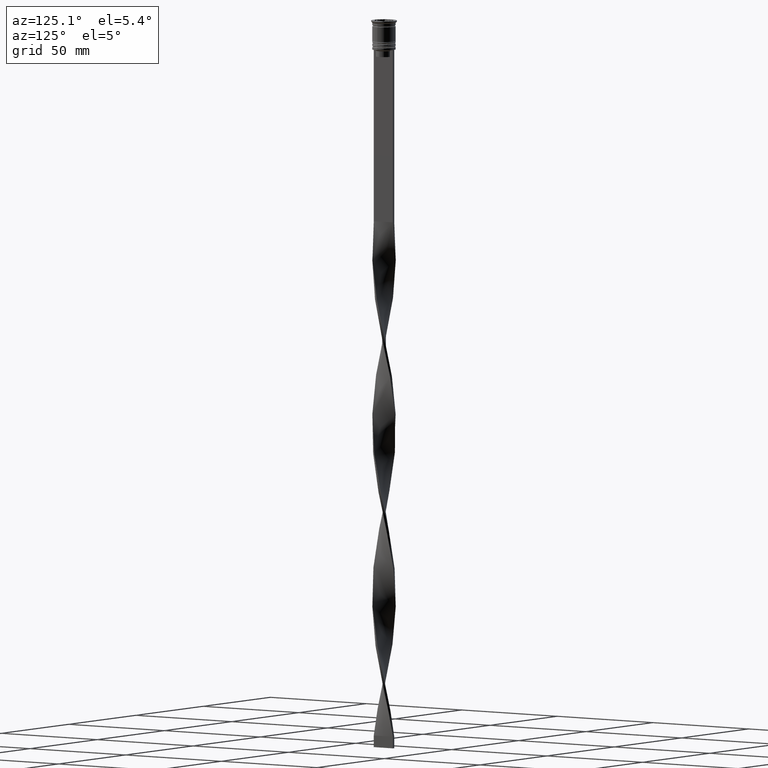
[diagram: clean part render]
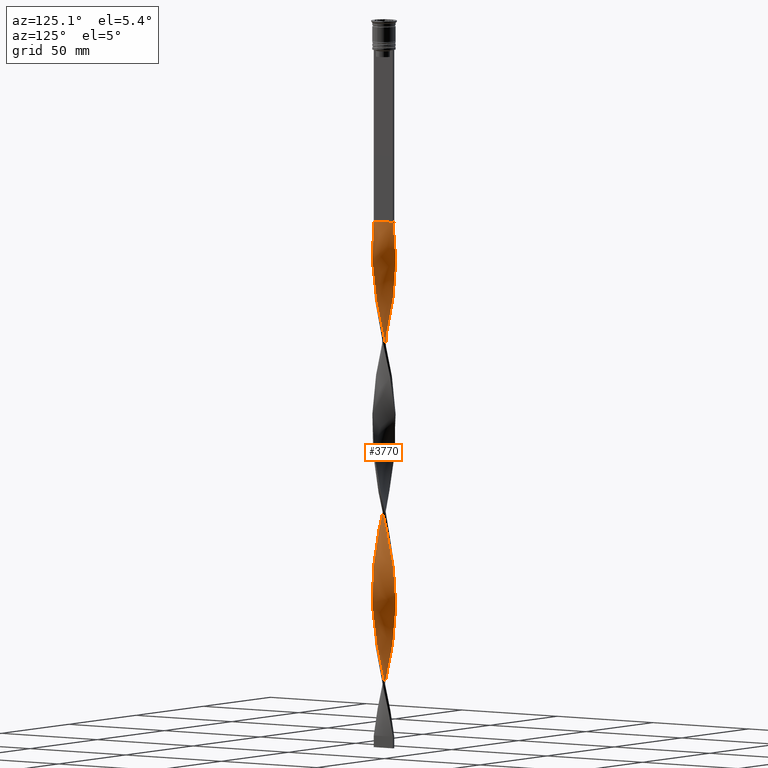
[diagram: same view with one face highlighted and labeled with its STEP entity id]
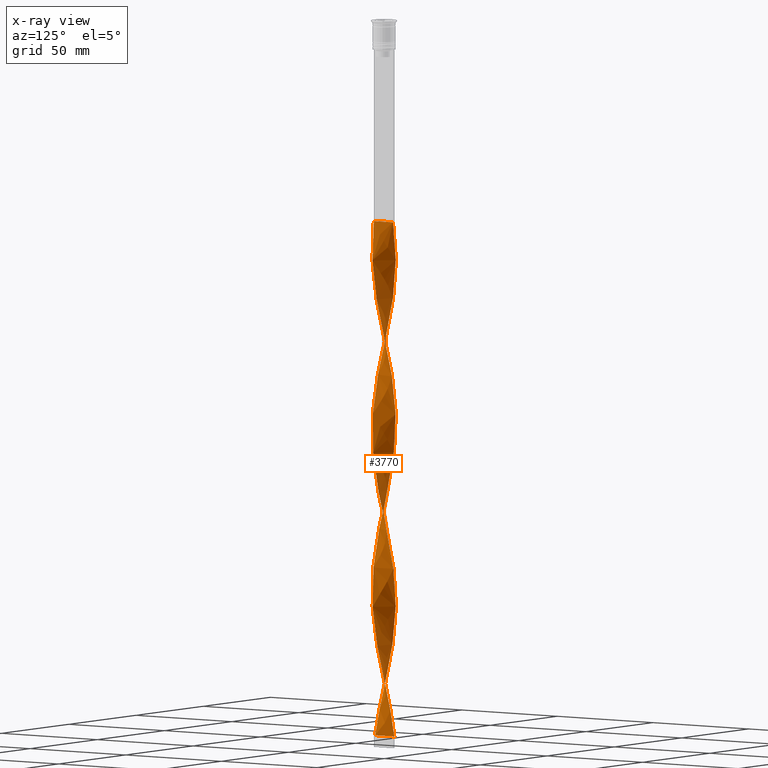
[diagram: x-ray of the same camera — body ghosted, the highlighted face saturated]
A machine part, auxiliary view. The second image highlights one B-rep face of the part: STEP entity #3770.
The next image is the same camera in x-ray: the body ghosted, the highlighted face saturated — about 0% of this face is hidden behind the body in this view.
In plain terms, the highlighted face is a freeform B-spline surface patch.
Its self-contained STEP definition (entity closure, byte-faithful):
#6 = CARTESIAN_POINT ( 'NONE',  ( -2.819473840788613295, -4.159395059513908421, -295.8684210526315610 ) ) ;
#10 = CARTESIAN_POINT ( 'NONE',  ( 4.724258586126252268, 1.712127568673660560, -276.4824561403509051 ) ) ;
#23 = CARTESIAN_POINT ( 'NONE',  ( 5.017136063310725369, 0.5017136063310723149, -270.6666666666665719 ) ) ;
#29 = CARTESIAN_POINT ( 'NONE',  ( 1.940000089582123222, -4.635342452550982983, -171.7982456140350962 ) ) ;
#31 = CARTESIAN_POINT ( 'NONE',  ( 3.912358312251428938, 3.153324029743397094, -284.2368421052631220 ) ) ;
#40 = CARTESIAN_POINT ( 'NONE',  ( -4.866129521283640180, 1.320664341398920971, -266.7894736842105203 ) ) ;
#44 = CARTESIAN_POINT ( 'NONE',  ( 4.017260339178528206, -3.018545902792139302, -253.2192982456140555 ) ) ;
#69 = CARTESIAN_POINT ( 'NONE',  ( -5.024212137769516140, 0.08539551914167348157, -125.2719298245613970 ) ) ;
#84 = CARTESIAN_POINT ( 'NONE',  ( 5.031288212228302470, -0.3309225680477264619, -266.7894736842105203 ) ) ;
#88 = CARTESIAN_POINT ( 'NONE',  ( -0.7452727871507828228, 4.986776443082574062, -92.31578947368419108 ) ) ;
#99 = CARTESIAN_POINT ( 'NONE',  ( -4.651228756897745953, -1.946648882453702711, -282.2982456140351246 ) ) ;
#108 = CARTESIAN_POINT ( 'NONE',  ( -3.465633818146537148, -3.638596190637134242, -144.6578947368421098 ) ) ;
#124 = CARTESIAN_POINT ( 'NONE',  ( 4.941632792297183663, -0.9111889738649986414, -195.0614035087719458 ) ) ;
#128 = CARTESIAN_POINT ( 'NONE',  ( -0.7452727871507828228, 4.986776443082574062, -239.6491228070175055 ) ) ;
#136 = CARTESIAN_POINT ( 'NONE',  ( 3.164131141785981871, -3.925766796198026487, -100.0701754385964932 ) ) ;
#144 = CARTESIAN_POINT ( 'NONE',  ( 0.5000000000000000000, -4.999999999999999112, -86.50000000000000000 ) ) ;
#150 = CARTESIAN_POINT ( 'NONE',  ( -2.096405966873735593, -4.566736473900832927, -299.7456140350877263 ) ) ;
#158 = CARTESIAN_POINT ( 'NONE',  ( -5.017136063310725369, -0.5017136063310717597, -197.0000000000000000 ) ) ;
#175 = CARTESIAN_POINT ( 'NONE',  ( 1.316153603105034264, 4.849509221873244513, -229.9561403508772059 ) ) ;
#177 = CARTESIAN_POINT ( 'NONE',  ( -3.767136494507089317, -3.351425585076241553, -290.0526315789473415 ) ) ;
#178 = CARTESIAN_POINT ( 'NONE',  ( 0.5000000000000000000, -4.999999999999999112, -86.50000000000000000 ) ) ;
#180 = CARTESIAN_POINT ( 'NONE',  ( -3.028891101531456798, -4.031028344680093412, -216.3859649122807127 ) ) ;
#196 = CARTESIAN_POINT ( 'NONE',  ( -1.940000089582123666, 4.635342452550982983, -245.4649122807017534 ) ) ;
#197 = CARTESIAN_POINT ( 'NONE',  ( 4.724258586126254045, -1.712127568673661004, -191.1842105263157805 ) ) ;
#204 = CARTESIAN_POINT ( 'NONE',  ( -4.459306470373856079, 2.316157551480869881, -183.4298245614035068 ) ) ;
#207 = CARTESIAN_POINT ( 'NONE',  ( 0.7452727871507813795, -4.986776443082574950, -165.9824561403508199 ) ) ;
#218 = CARTESIAN_POINT ( 'NONE',  ( -0.3297922997023085001, 5.014103812153980044, -237.7105263157894797 ) ) ;
#226 = CARTESIAN_POINT ( 'NONE',  ( 0.08568818774616382417, -5.041431181225382474, -231.8947368421052602 ) ) ;
#232 = VERTEX_POINT ( 'NONE', #1090 ) ;
#240 = CARTESIAN_POINT ( 'NONE',  ( 2.819473840788611962, -4.159395059513907533, -98.13157894736841058 ) ) ;
#248 = CARTESIAN_POINT ( 'NONE',  ( -2.819473840788611518, 4.159395059513907533, -171.7982456140350962 ) ) ;
#251 = CARTESIAN_POINT ( 'NONE',  ( 0.08568818774616604461, 5.041431181225384250, -88.43859649122805422 ) ) ;
#261 = CARTESIAN_POINT ( 'NONE',  ( -2.819473840788611518, 4.159395059513907533, -171.7982456140350962 ) ) ;
#280 = CARTESIAN_POINT ( 'NONE',  ( -0.5000000000000006661, -5.000000000000000888, -307.5000000000000000 ) ) ;
#285 = CARTESIAN_POINT ( 'NONE',  ( 4.582387650968865245, 2.103590795948400594, -278.4210526315789593 ) ) ;
#298 = CARTESIAN_POINT ( 'NONE',  ( 2.474816539791241166, -4.393023322829789024, -96.19298245614034215 ) ) ;
#305 = CARTESIAN_POINT ( 'NONE',  ( 3.651066433574118975, 3.477511282250445923, -286.1754385964911762 ) ) ;
#313 = CARTESIAN_POINT ( 'NONE',  ( -2.324095515968829240, 4.474589461973509152, -247.4035087719297792 ) ) ;
#320 = CARTESIAN_POINT ( 'NONE',  ( 4.267384183849967982, -2.685666220508037494, -107.8245614035087385 ) ) ;
#334 = CARTESIAN_POINT ( 'NONE',  ( -4.908199934305800483, -1.154532037420935353, -278.4210526315789593 ) ) ;
#337 = CARTESIAN_POINT ( 'NONE',  ( -2.676493308750143019, -4.252808903326800838, -218.3245614035087954 ) ) ;
#343 = CARTESIAN_POINT ( 'NONE',  ( 0.7452727871507814905, -4.986776443082574950, -165.9824561403508199 ) ) ;
#344 = CARTESIAN_POINT ( 'NONE',  ( 4.459306470373856079, -2.316157551480869881, -257.0964912280701924 ) ) ;
#353 = CARTESIAN_POINT ( 'NONE',  ( -4.724258586126253157, 1.712127568673661671, -264.8508771929824661 ) ) ;
#359 = CARTESIAN_POINT ( 'NONE',  ( -0.3297922997023116642, -5.014103812153977380, -229.9561403508772059 ) ) ;
#365 = CARTESIAN_POINT ( 'NONE',  ( -4.969744073267052364, -0.7427273027343305190, -129.1491228070175339 ) ) ;
#377 = CARTESIAN_POINT ( 'NONE',  ( -4.173650190928740678, 2.829136777236350930, -259.0350877192983035 ) ) ;
#380 = CARTESIAN_POINT ( 'NONE',  ( 1.555904663195419646, 4.796095443128455038, -297.8070175438595584 ) ) ;
#383 = ORIENTED_EDGE ( 'NONE', *, *, #871, .T. ) ;
#386 = CARTESIAN_POINT ( 'NONE',  ( -3.651066433574120751, 3.477511282250446811, -107.8245614035087385 ) ) ;
#389 = CARTESIAN_POINT ( 'NONE',  ( 3.767136494507087541, -3.351425585076240221, -103.9473684210526159 ) ) ;
#398 = CARTESIAN_POINT ( 'NONE',  ( 4.267384183849967982, -2.685666220508037494, -255.1578947368421666 ) ) ;
#402 = CARTESIAN_POINT ( 'NONE',  ( -4.017260339178529982, -3.018545902792138858, -140.7807017543859445 ) ) ;
#415 = CARTESIAN_POINT ( 'NONE',  ( 4.724258586126252268, 1.712127568673660560, -276.4824561403509051 ) ) ;
#421 = CARTESIAN_POINT ( 'NONE',  ( -3.767136494507089317, -3.351425585076241997, -142.7192982456140271 ) ) ;
#442 = CARTESIAN_POINT ( 'NONE',  ( -4.267384183849968871, -2.685666220508038382, -138.8421052631578902 ) ) ;
#443 = CARTESIAN_POINT ( 'NONE',  ( -3.028891101531455909, 4.031028344680096076, -251.2807017543860013 ) ) ;
#456 = CARTESIAN_POINT ( 'NONE',  ( 4.724258586126254045, -1.712127568673661004, -191.1842105263157805 ) ) ;
#458 = B_SPLINE_CURVE_WITH_KNOTS ( 'NONE', 3,
 ( #3273, #1737, #2089, #3002 ),
 .UNSPECIFIED., .F., .F.,
 ( 4, 4 ),
 ( 0.000000000000000000, 1.000000000000000000 ),
 .UNSPECIFIED. ) ;
#461 = CARTESIAN_POINT ( 'NONE',  ( -4.908199934305800483, -1.154532037420935353, -278.4210526315789593 ) ) ;
#469 = CARTESIAN_POINT ( 'NONE',  ( 2.474816539791241166, -4.393023322829789024, -96.19298245614034215 ) ) ;
#479 = CARTESIAN_POINT ( 'NONE',  ( 5.031288212228305134, 0.3309225680477231313, -200.8771929824561369 ) ) ;
#484 = CARTESIAN_POINT ( 'NONE',  ( 4.582387650968867021, -2.103590795948402370, -189.2456140350877263 ) ) ;
#493 = CARTESIAN_POINT ( 'NONE',  ( 1.150588725173100624, 4.891435943105514106, -152.4122807017543835 ) ) ;
#509 = CARTESIAN_POINT ( 'NONE',  ( 4.459306470373858744, 2.316157551480868992, -210.5701754385964932 ) ) ;
#514 = CARTESIAN_POINT ( 'NONE',  ( 2.819473840788611962, -4.159395059513907533, -245.4649122807017534 ) ) ;
#517 = CARTESIAN_POINT ( 'NONE',  ( 1.150588725173100180, -4.891435943105515882, -167.9210526315789309 ) ) ;
#527 = CARTESIAN_POINT ( 'NONE',  ( 4.378018920948802517, -2.466363786592378204, -187.3070175438596436 ) ) ;
#529 = CARTESIAN_POINT ( 'NONE',  ( -1.316153603105031378, -4.849509221873245401, -303.6228070175438347 ) ) ;
#533 = CARTESIAN_POINT ( 'NONE',  ( -4.173650190928739789, -2.829136777236347378, -208.6315789473684106 ) ) ;
#546 = CARTESIAN_POINT ( 'NONE',  ( -2.474816539791244274, -4.393023322829789912, -150.4736842105263008 ) ) ;
#547 = CARTESIAN_POINT ( 'NONE',  ( 0.7452727871507843771, 4.986776443082572285, -154.3508771929824661 ) ) ;
#551 = CARTESIAN_POINT ( 'NONE',  ( -4.173650190928740678, 2.829136777236350930, -111.7017543859649038 ) ) ;
#553 = CARTESIAN_POINT ( 'NONE',  ( -3.339978767552790107, -3.754269813465268335, -214.4473684210526301 ) ) ;
#556 = CARTESIAN_POINT ( 'NONE',  ( -1.717995393956229355, -4.740449624971874165, -154.3508771929824661 ) ) ;
#571 = CARTESIAN_POINT ( 'NONE',  ( 2.096405966873734261, -4.566736473900831150, -94.25438596491227372 ) ) ;
#578 = CARTESIAN_POINT ( 'NONE',  ( 2.676493308750142575, 4.252808903326800838, -144.6578947368421098 ) ) ;
#580 = CARTESIAN_POINT ( 'NONE',  ( 3.339978767552786110, -3.754269813465273664, -179.5526315789473415 ) ) ;
#589 = CARTESIAN_POINT ( 'NONE',  ( 4.908199934305798706, -1.154532037420935353, -115.5789473684210265 ) ) ;
#606 = CARTESIAN_POINT ( 'NONE',  ( -5.017136063310725369, -0.5017136063310717597, -197.0000000000000000 ) ) ;
#613 = CARTESIAN_POINT ( 'NONE',  ( 4.173650190928738901, 2.829136777236350042, -282.2982456140351246 ) ) ;
#629 = CARTESIAN_POINT ( 'NONE',  ( -4.582387650968865245, -2.103590795948400149, -204.7543859649123306 ) ) ;
#650 = CARTESIAN_POINT ( 'NONE',  ( -3.339978767552790107, -3.754269813465268335, -214.4473684210526301 ) ) ;
#655 = CARTESIAN_POINT ( 'NONE',  ( -1.316153603105031378, -4.849509221873245401, -156.2894736842105203 ) ) ;
#656 = CARTESIAN_POINT ( 'NONE',  ( 0.3297922997023089442, 5.014103812153978268, -303.6228070175438347 ) ) ;
#668 = CARTESIAN_POINT ( 'NONE',  ( -0.7452727871507828228, -4.986776443082572285, -228.0175438596490949 ) ) ;
#673 = CARTESIAN_POINT ( 'NONE',  ( -0.9143118122538356207, -4.958568818774617526, -158.2280701754386314 ) ) ;
#681 = CARTESIAN_POINT ( 'NONE',  ( -5.017136063310726257, 0.5017136063310729810, -270.6666666666666288 ) ) ;
#687 = CARTESIAN_POINT ( 'NONE',  ( 2.324095515968828796, 4.474589461973508264, -293.9298245614035068 ) ) ;
#693 = CARTESIAN_POINT ( 'NONE',  ( -5.031288212228305134, -0.3309225680477259068, -127.2105263157894370 ) ) ;
#710 = CARTESIAN_POINT ( 'NONE',  ( -3.651066433574119863, -3.477511282250445035, -212.5087719298245759 ) ) ;
#714 = CARTESIAN_POINT ( 'NONE',  ( -4.459306470373857856, -2.316157551480869881, -136.9035087719298076 ) ) ;
#726 = EDGE_CURVE ( 'NONE', #232, #1921, #1778, .T. ) ;
#731 = CARTESIAN_POINT ( 'NONE',  ( -4.173650190928739789, -2.829136777236346934, -208.6315789473684106 ) ) ;
#735 = CARTESIAN_POINT ( 'NONE',  ( -5.017136063310726257, 0.5017136063310729810, -123.3333333333333286 ) ) ;
#736 = CARTESIAN_POINT ( 'NONE',  ( -4.724258586126253157, 1.712127568673661671, -117.5175438596491233 ) ) ;
#757 = CARTESIAN_POINT ( 'NONE',  ( -4.459306470373857856, -2.316157551480869881, -284.2368421052631220 ) ) ;
#781 = CARTESIAN_POINT ( 'NONE',  ( 5.017136063310728034, -0.5017136063310736471, -197.0000000000000000 ) ) ;
#783 = DIRECTION ( 'NONE',  ( 0.000000000000000000, 1.000000000000000000, 0.000000000000000000 ) ) ;
#787 = CARTESIAN_POINT ( 'NONE',  ( 4.779714345601771441, -1.550590459937318588, -113.6403508771929864 ) ) ;
#800 = CARTESIAN_POINT ( 'NONE',  ( -1.555904663195417426, 4.796095443128456814, -243.5263157894736707 ) ) ;
#801 = CARTESIAN_POINT ( 'NONE',  ( 4.908199934305800483, 1.154532037420934687, -204.7543859649123306 ) ) ;
#807 = CARTESIAN_POINT ( 'NONE',  ( 3.339978767552787886, 3.754269813465269223, -140.7807017543859445 ) ) ;
#820 = CARTESIAN_POINT ( 'NONE',  ( -3.651066433574120751, 3.477511282250446811, -255.1578947368421666 ) ) ;
#827 = CARTESIAN_POINT ( 'NONE',  ( -1.150588725173101068, -4.891435943105514106, -226.0789473684210407 ) ) ;
#843 = CARTESIAN_POINT ( 'NONE',  ( 0.5000000000000000000, 5.000000000000000888, -233.8333333333333428 ) ) ;
#848 = CARTESIAN_POINT ( 'NONE',  ( -4.969744073267050588, 0.7427273027343300749, -191.1842105263157805 ) ) ;
#852 = CARTESIAN_POINT ( 'NONE',  ( -1.316153603105031378, -4.849509221873245401, -156.2894736842105203 ) ) ;
#863 = CARTESIAN_POINT ( 'NONE',  ( 4.941632792297182775, 0.9111889738649961989, -125.2719298245613970 ) ) ;
#867 = CARTESIAN_POINT ( 'NONE',  ( 2.324095515968828352, 4.474589461973507376, -146.5964912280701355 ) ) ;
#871 = EDGE_CURVE ( 'NONE', #3840, #1341, #3772, .T. ) ;
#880 = CARTESIAN_POINT ( 'NONE',  ( 1.717995393956226691, -4.740449624971873277, -92.31578947368419108 ) ) ;
#886 = CARTESIAN_POINT ( 'NONE',  ( -0.4999999999999993339, 4.999999999999999112, -160.1666666666666856 ) ) ;
#888 = CARTESIAN_POINT ( 'NONE',  ( 3.028891101531455465, -4.031028344680097852, -177.6140350877192873 ) ) ;
#902 = CARTESIAN_POINT ( 'NONE',  ( 4.582387650968865245, 2.103590795948400594, -131.0877192982456449 ) ) ;
#908 = CARTESIAN_POINT ( 'NONE',  ( 4.969744073267051476, -0.7427273027343307410, -264.8508771929824661 ) ) ;
#921 = CARTESIAN_POINT ( 'NONE',  ( 4.866129521283639292, 1.320664341398920083, -127.2105263157894370 ) ) ;
#928 = CARTESIAN_POINT ( 'NONE',  ( 1.940000089582123666, 4.635342452550982095, -295.8684210526315610 ) ) ;
#939 = CARTESIAN_POINT ( 'NONE',  ( -4.459306470373857856, -2.316157551480869881, -284.2368421052631220 ) ) ;
#940 = CARTESIAN_POINT ( 'NONE',  ( 4.173650190928738901, 2.829136777236349598, -134.9649122807017534 ) ) ;
#970 = CARTESIAN_POINT ( 'NONE',  ( 4.651228756897744177, -1.946648882453702267, -259.0350877192983035 ) ) ;
#980 = CARTESIAN_POINT ( 'NONE',  ( 4.969744073267051476, -0.7427273027343307410, -264.8508771929824661 ) ) ;
#985 = CARTESIAN_POINT ( 'NONE',  ( 2.324095515968828796, -4.474589461973509152, -173.7368421052631220 ) ) ;
#998 = CARTESIAN_POINT ( 'NONE',  ( 3.651066433574118975, 3.477511282250445923, -286.1754385964911762 ) ) ;
#1003 = CARTESIAN_POINT ( 'NONE',  ( -1.555904663195417426, 4.796095443128457703, -96.19298245614034215 ) ) ;
#1023 = CARTESIAN_POINT ( 'NONE',  ( -4.582387650968867021, 2.103590795948401482, -115.5789473684210265 ) ) ;
#1027 = CARTESIAN_POINT ( 'NONE',  ( -2.474816539791244274, -4.393023322829789912, -297.8070175438595584 ) ) ;
#1031 = CARTESIAN_POINT ( 'NONE',  ( 4.582387650968865245, 2.103590795948400594, -131.0877192982456165 ) ) ;
#1035 = CARTESIAN_POINT ( 'NONE',  ( -3.028891101531455909, 4.031028344680096076, -251.2807017543860013 ) ) ;
#1045 = CARTESIAN_POINT ( 'NONE',  ( -4.941632792297183663, 0.9111889738649969761, -121.3947368421052460 ) ) ;
#1046 = CARTESIAN_POINT ( 'NONE',  ( -3.028891101531455909, 4.031028344680096076, -103.9473684210526301 ) ) ;
#1060 = CARTESIAN_POINT ( 'NONE',  ( 3.912358312251429826, -3.153324029743399315, -183.4298245614035068 ) ) ;
#1064 = CARTESIAN_POINT ( 'NONE',  ( -4.651228756897745953, -1.946648882453702711, -134.9649122807017534 ) ) ;
#1084 = CARTESIAN_POINT ( 'NONE',  ( -4.651228756897745953, -1.946648882453702711, -282.2982456140351246 ) ) ;
#1090 = CARTESIAN_POINT ( 'NONE',  ( 0.5000000000000000000, 5.000000000000000888, -86.50000000000000000 ) ) ;
#1091 = CARTESIAN_POINT ( 'NONE',  ( 0.5000000000000000000, -4.999999999999999112, -86.50000000000000000 ) ) ;
#1108 = CARTESIAN_POINT ( 'NONE',  ( -2.819473840788613295, -4.159395059513908421, -295.8684210526315610 ) ) ;
#1113 = CARTESIAN_POINT ( 'NONE',  ( 2.474816539791241166, -4.393023322829789024, -243.5263157894736707 ) ) ;
#1127 = CARTESIAN_POINT ( 'NONE',  ( 4.173650190928738901, -2.829136777236352707, -185.3684210526315894 ) ) ;
#1132 = CARTESIAN_POINT ( 'NONE',  ( 3.028891101531455021, 4.031028344680095188, -142.7192982456140271 ) ) ;
#1146 = CARTESIAN_POINT ( 'NONE',  ( 4.267384183849969759, 2.685666220508037938, -212.5087719298245759 ) ) ;
#1155 = CARTESIAN_POINT ( 'NONE',  ( -1.717995393956225580, 4.740449624971873277, -165.9824561403508199 ) ) ;
#1159 = CARTESIAN_POINT ( 'NONE',  ( 1.555904663195416759, -4.796095443128456814, -169.8596491228070136 ) ) ;
#1171 = CARTESIAN_POINT ( 'NONE',  ( 4.651228756897745065, -1.946648882453702267, -111.7017543859649038 ) ) ;
#1178 = CARTESIAN_POINT ( 'NONE',  ( 4.017260339178528206, -3.018545902792139302, -253.2192982456140555 ) ) ;
#1190 = CARTESIAN_POINT ( 'NONE',  ( 4.459306470373856079, -2.316157551480869881, -109.7631578947368354 ) ) ;
#1194 = CARTESIAN_POINT ( 'NONE',  ( -3.465633818146535372, 3.638596190637134242, -175.6754385964912046 ) ) ;
#1197 = CARTESIAN_POINT ( 'NONE',  ( -0.5000000000000006661, -5.000000000000000888, -160.1666666666666856 ) ) ;
#1206 = CARTESIAN_POINT ( 'NONE',  ( 3.164131141785981871, -3.925766796198026487, -100.0701754385964932 ) ) ;
#1232 = CARTESIAN_POINT ( 'NONE',  ( -4.017260339178526429, 3.018545902792141078, -179.5526315789473415 ) ) ;
#1247 = CARTESIAN_POINT ( 'NONE',  ( -0.9143118122538356207, -4.958568818774617526, -305.5614035087719458 ) ) ;
#1262 = CARTESIAN_POINT ( 'NONE',  ( 4.941632792297182775, 0.9111889738649961989, -125.2719298245613970 ) ) ;
#1273 = CARTESIAN_POINT ( 'NONE',  ( 4.908199934305798706, -1.154532037420935353, -262.9122807017543551 ) ) ;
#1278 = CARTESIAN_POINT ( 'NONE',  ( -0.5000000000000006661, -5.000000000000000888, -307.5000000000000000 ) ) ;
#1288 = CARTESIAN_POINT ( 'NONE',  ( 4.378018920948802517, 2.466363786592374652, -280.3596491228070136 ) ) ;
#1294 = CARTESIAN_POINT ( 'NONE',  ( -1.717995393956229355, -4.740449624971875053, -154.3508771929824661 ) ) ;
#1309 = CARTESIAN_POINT ( 'NONE',  ( 4.582387650968865245, 2.103590795948400594, -278.4210526315789593 ) ) ;
#1330 = CARTESIAN_POINT ( 'NONE',  ( 0.5000000000000000000, -4.999999999999999112, -233.8333333333333428 ) ) ;
#1334 = CARTESIAN_POINT ( 'NONE',  ( -5.017136063310728034, 0.5017136063310729810, -123.3333333333333286 ) ) ;
#1341 = VERTEX_POINT ( 'NONE', #3924 ) ;
#1352 = CARTESIAN_POINT ( 'NONE',  ( 2.096405966873734261, -4.566736473900831150, -241.5877192982455881 ) ) ;
#1376 = CARTESIAN_POINT ( 'NONE',  ( -2.819473840788613295, -4.159395059513908421, -148.5350877192982466 ) ) ;
#1393 = CARTESIAN_POINT ( 'NONE',  ( 5.017136063310726257, -0.5017136063310736471, -197.0000000000000000 ) ) ;
#1397 = CARTESIAN_POINT ( 'NONE',  ( 5.024212137769516140, -0.08539551914167299584, -198.9385964912280826 ) ) ;
#1404 = CARTESIAN_POINT ( 'NONE',  ( 2.819473840788611962, -4.159395059513907533, -98.13157894736841058 ) ) ;
#1420 = CARTESIAN_POINT ( 'NONE',  ( -4.651228756897745953, -1.946648882453702711, -134.9649122807017534 ) ) ;
#1421 = CARTESIAN_POINT ( 'NONE',  ( 2.474816539791245162, 4.393023322829789912, -224.1403508771929580 ) ) ;
#1433 = CARTESIAN_POINT ( 'NONE',  ( -0.3297922997023116642, -5.014103812153977380, -229.9561403508772059 ) ) ;
#1449 = CARTESIAN_POINT ( 'NONE',  ( 0.9143118122538362869, 4.958568818774617526, -231.8947368421052886 ) ) ;
#1453 = CARTESIAN_POINT ( 'NONE',  ( -4.941632792297182775, -0.9111889738649967541, -198.9385964912280826 ) ) ;
#1466 = CARTESIAN_POINT ( 'NONE',  ( 3.164131141785983203, 3.925766796198028263, -220.2631578947368212 ) ) ;
#1471 = CARTESIAN_POINT ( 'NONE',  ( -0.9143118122538357317, -4.958568818774617526, -305.5614035087719458 ) ) ;
#1472 = CARTESIAN_POINT ( 'NONE',  ( 3.767136494507087541, -3.351425585076240221, -251.2807017543860013 ) ) ;
#1486 = CARTESIAN_POINT ( 'NONE',  ( -3.339978767552788330, 3.754269813465271888, -253.2192982456140555 ) ) ;
#1493 = CARTESIAN_POINT ( 'NONE',  ( -0.9143118122538321790, 4.958568818774615750, -162.1052631578947398 ) ) ;
#1509 = CARTESIAN_POINT ( 'NONE',  ( 0.08568818774616604461, 5.041431181225384250, -235.7719298245613970 ) ) ;
#1510 = CARTESIAN_POINT ( 'NONE',  ( 1.940000089582123666, 4.635342452550982095, -148.5350877192982466 ) ) ;
#1513 = CARTESIAN_POINT ( 'NONE',  ( -4.378018920948803405, 2.466363786592376872, -113.6403508771929864 ) ) ;
#1517 = CARTESIAN_POINT ( 'NONE',  ( -4.267384183849966206, 2.685666220508038826, -181.4912280701754241 ) ) ;
#1521 = CARTESIAN_POINT ( 'NONE',  ( -1.555904663195417426, 4.796095443128456814, -96.19298245614034215 ) ) ;
#1529 = CARTESIAN_POINT ( 'NONE',  ( 4.779714345601771441, -1.550590459937318588, -113.6403508771929864 ) ) ;
#1534 = CARTESIAN_POINT ( 'NONE',  ( 5.017136063310725369, 0.5017136063310723149, -270.6666666666666288 ) ) ;
#1545 = CARTESIAN_POINT ( 'NONE',  ( 5.031288212228302470, -0.3309225680477264619, -119.4561403508771917 ) ) ;
#1566 = CARTESIAN_POINT ( 'NONE',  ( -4.779714345601770553, 1.550590459937320587, -187.3070175438596436 ) ) ;
#1582 = CARTESIAN_POINT ( 'NONE',  ( -3.164131141785980539, 3.925766796198027375, -173.7368421052631220 ) ) ;
#1593 = CARTESIAN_POINT ( 'NONE',  ( 4.017260339178531758, 3.018545902792137081, -214.4473684210526301 ) ) ;
#1600 = CARTESIAN_POINT ( 'NONE',  ( -2.324095515968829240, -4.474589461973508264, -220.2631578947368212 ) ) ;
#1606 = CARTESIAN_POINT ( 'NONE',  ( 1.150588725173100180, -4.891435943105515882, -167.9210526315789309 ) ) ;
#1609 = CARTESIAN_POINT ( 'NONE',  ( 4.866129521283639292, 1.320664341398920083, -274.5438596491227941 ) ) ;
#1622 = CARTESIAN_POINT ( 'NONE',  ( 2.676493308750142575, 4.252808903326800838, -291.9912280701753957 ) ) ;
#1628 = CARTESIAN_POINT ( 'NONE',  ( -0.08568818774616768219, -5.041431181225384250, -162.1052631578947683 ) ) ;
#1640 = CARTESIAN_POINT ( 'NONE',  ( 1.150588725173100624, 4.891435943105514106, -299.7456140350877263 ) ) ;
#1644 = CARTESIAN_POINT ( 'NONE',  ( -4.173650190928740678, 2.829136777236350930, -111.7017543859649038 ) ) ;
#1660 = CARTESIAN_POINT ( 'NONE',  ( -3.028891101531457242, -4.031028344680093412, -216.3859649122807127 ) ) ;
#1664 = CARTESIAN_POINT ( 'NONE',  ( -2.324095515968829684, 4.474589461973509152, -100.0701754385964932 ) ) ;
#1679 = CARTESIAN_POINT ( 'NONE',  ( 4.459306470373856079, -2.316157551480869881, -257.0964912280701924 ) ) ;
#1680 = CARTESIAN_POINT ( 'NONE',  ( 3.651066433574119863, -3.477511282250448144, -181.4912280701754241 ) ) ;
#1685 = CARTESIAN_POINT ( 'NONE',  ( -4.459306470373857856, -2.316157551480869881, -136.9035087719298076 ) ) ;
#1693 = CARTESIAN_POINT ( 'NONE',  ( 4.267384183849967094, -2.685666220508037494, -107.8245614035087527 ) ) ;
#1707 = CARTESIAN_POINT ( 'NONE',  ( -4.017260339178529982, -3.018545902792138858, -140.7807017543859445 ) ) ;
#1708 = CARTESIAN_POINT ( 'NONE',  ( -4.017260339178529982, -3.018545902792138858, -288.1140350877192873 ) ) ;
#1729 = CARTESIAN_POINT ( 'NONE',  ( -3.164131141785982759, -3.925766796198028263, -293.9298245614035068 ) ) ;
#1736 = CARTESIAN_POINT ( 'NONE',  ( 5.031288212228302470, -0.3309225680477264619, -119.4561403508771917 ) ) ;
#1737 = CARTESIAN_POINT ( 'NONE',  ( -0.5000000000000002220, -1.666666666666667851, -307.5000000000000000 ) ) ;
#1750 = CARTESIAN_POINT ( 'NONE',  ( 4.651228756897746841, 1.946648882453700269, -208.6315789473684106 ) ) ;
#1758 = CARTESIAN_POINT ( 'NONE',  ( -4.866129521283639292, -1.320664341398917419, -200.8771929824561369 ) ) ;
#1773 = CARTESIAN_POINT ( 'NONE',  ( 2.096405966873736482, 4.566736473900832927, -226.0789473684210407 ) ) ;
#1778 =( BOUNDED_CURVE ( )  B_SPLINE_CURVE ( 2, ( #2439, #251, #3130, #2168, #3720, #1521, #1885, #4122, #2519, #2953, #4033, #3714, #3394, #551, #1513, #2617, #2951, #3933, #1045, #735, #69, #693, #3268, #2038, #2316, #1420, #1685, #442, #1707, #2969, #2678, #3230, #3389, #546, #3079, #556, #852, #4058, #1197, #4077, #2712, #207, #517, #1159, #2456, #3993, #3734, #888, #580, #1680, #1060, #2012, #2921, #2650, #456, #2965, #124, #1393, #2341, #479, #3301, #2986, #2444, #4126, #2523, #2874, #1593, #2850, #1971, #2896, #3859, #3238, #2214, #3492, #1806, #2486, #3965, #1509, #3960, #3037, #3647, #800, #196, #313, #2627, #1035, #2980, #3543, #2915, #377, #3592, #2331, #353, #40, #3526, #681, #2898, #4129, #2527, #334, #4048, #99, #939, #1898, #2149, #177, #3790, #2198, #6, #1027, #3776, #3371, #529, #1471, #3459 ),
 .UNSPECIFIED., .F., .T. ) 
 B_SPLINE_CURVE_WITH_KNOTS ( ( 3, 2, 2, 2, 2, 2, 2, 2, 2, 2, 2, 2, 2, 2, 2, 2, 2, 2, 2, 2, 2, 2, 2, 2, 2, 2, 2, 2, 2, 2, 2, 2, 2, 2, 2, 2, 2, 2, 2, 2, 2, 2, 2, 2, 2, 2, 2, 2, 2, 2, 2, 2, 2, 2, 2, 2, 2, 3 ),
 ( 0.000000000000000000, 0.01315789473684210453, 0.02631578947368420907, 0.03947368421052631360, 0.05263157894736841813, 0.06578947368421052266, 0.07894736842105262720, 0.09210526315789473173, 0.1052631578947368363, 0.1184210526315789408, 0.1315789473684210453, 0.1447368421052631637, 0.1578947368421052544, 0.1710526315789473728, 0.1842105263157894635, 0.1973684210526315541, 0.2105263157894736725, 0.2236842105263157909, 0.2368421052631578816, 0.2500000000000000000, 0.2631578947368420907, 0.2763157894736842368, 0.2894736842105263275, 0.3026315789473684181, 0.3157894736842105088, 0.3289473684210526550, 0.3421052631578947456, 0.3552631578947368918, 0.3684210526315789269, 0.3815789473684210731, 0.3947368421052631082, 0.4078947368421052544, 0.4210526315789473450, 0.4342105263157895467, 0.4473684210526315819, 0.4605263157894736725, 0.4736842105263157632, 0.4868421052631579093, 0.5000000000000000000, 0.5131578947368421462, 0.5263157894736841813, 0.5394736842105263275, 0.5526315789473684736, 0.5657894736842105088, 0.5789473684210526550, 0.5921052631578946901, 0.6052631578947368363, 0.6184210526315789824, 0.6315789473684210176, 0.6447368421052631637, 0.6578947368421053099, 0.6710526315789473450, 0.6842105263157894912, 0.6973684210526315264, 0.7105263157894737835, 0.7236842105263158187, 0.7368421052631578538, 0.7500000000000000000 ),
 .UNSPECIFIED. ) 
 CURVE ( )  GEOMETRIC_REPRESENTATION_ITEM ( )  RATIONAL_B_SPLINE_CURVE ( ( 1.000000000000000000, 0.9965844930066698470, 1.000000000000000000, 0.9965844930066698470, 1.000000000000000000, 0.9965844930066698470, 1.000000000000000000, 0.9965844930066698470, 1.000000000000000000, 0.9965844930066698470, 1.000000000000000000, 0.9965844930066698470, 1.000000000000000000, 0.9965844930066698470, 1.000000000000000000, 0.9965844930066698470, 1.000000000000000000, 0.9965844930066698470, 1.000000000000000000, 0.9965844930066698470, 1.000000000000000000, 0.9965844930066698470, 1.000000000000000000, 0.9965844930066698470, 1.000000000000000000, 0.9965844930066698470, 1.000000000000000000, 0.9965844930066698470, 1.000000000000000000, 0.9965844930066698470, 1.000000000000000000, 0.9965844930066698470, 1.000000000000000000, 0.9965844930066698470, 1.000000000000000000, 0.9965844930066698470, 1.000000000000000000, 0.9965844930066698470, 1.000000000000000000, 0.9965844930066698470, 1.000000000000000000, 0.9965844930066698470, 1.000000000000000000, 0.9965844930066698470, 1.000000000000000000, 0.9965844930066698470, 1.000000000000000000, 0.9965844930066698470, 1.000000000000000000, 0.9965844930066698470, 1.000000000000000000, 0.9965844930066698470, 1.000000000000000000, 0.9965844930066698470, 1.000000000000000000, 0.9965844930066698470, 1.000000000000000000, 0.9965844930066698470, 1.000000000000000000, 0.9965844930066698470, 1.000000000000000000, 0.9965844930066698470, 1.000000000000000000, 0.9965844930066698470, 1.000000000000000000, 0.9965844930066698470, 1.000000000000000000, 0.9965844930066698470, 1.000000000000000000, 0.9965844930066698470, 1.000000000000000000, 0.9965844930066698470, 1.000000000000000000, 0.9965844930066698470, 1.000000000000000000, 0.9965844930066698470, 1.000000000000000000, 0.9965844930066698470, 1.000000000000000000, 0.9965844930066698470, 1.000000000000000000, 0.9965844930066698470, 1.000000000000000000, 0.9965844930066698470, 1.000000000000000000, 0.9965844930066698470, 1.000000000000000000, 0.9965844930066698470, 1.000000000000000000, 0.9965844930066698470, 1.000000000000000000, 0.9965844930066698470, 1.000000000000000000, 0.9965844930066698470, 1.000000000000000000, 0.9965844930066698470, 1.000000000000000000, 0.9965844930066698470, 1.000000000000000000, 0.9965844930066698470, 1.000000000000000000, 0.9965844930066698470, 1.000000000000000000, 0.9965844930066698470, 1.000000000000000000, 0.9965844930066698470, 1.000000000000000000, 0.9965844930066698470, 1.000000000000000000, 0.9965844930066698470, 1.000000000000000000, 0.9965844930066698470, 1.000000000000000000, 0.9965844930066698470, 1.000000000000000000 ) ) 
 REPRESENTATION_ITEM ( '' )  );
#1779 = CARTESIAN_POINT ( 'NONE',  ( -2.324095515968828796, -4.474589461973507376, -220.2631578947368212 ) ) ;
#1793 = CARTESIAN_POINT ( 'NONE',  ( 5.031288212228305134, 0.3309225680477231313, -200.8771929824561084 ) ) ;
#1797 = CARTESIAN_POINT ( 'NONE',  ( -4.779714345601770553, 1.550590459937320587, -187.3070175438596436 ) ) ;
#1800 =( BOUNDED_SURFACE ( )  B_SPLINE_SURFACE ( 1, 2, ( 
 ( #1940, #2557, #2952, #88, #3231, #1003, #2907, #1664, #2300, #1046, #3876, #386, #3581, #1644, #3539, #1023, #736, #3835, #3563, #1334, #2594, #1996, #365, #3269, #2285, #1064, #714, #3249, #402, #421, #108, #3502, #1376, #2636, #3913, #1294, #655, #673, #1923, #1628, #3190, #343, #1606, #2862, #29, #985, #2243, #3519, #3209, #3648, #3325, #1127, #527, #484, #197, #3058, #3601, #781, #1397, #1793, #3038, #801, #3961, #1750, #509, #1146, #4004, #2703, #2058, #1466, #3018, #1421, #1773, #2654, #175, #1449, #843, #2039, #218, #128, #3984, #3306, #2723, #2388, #3666, #443, #1486, #820, #2102, #2410, #2078, #3690, #3934, #3369, #2742, #2017, #3348, #4026, #2317, #461, #2970, #1084, #757, #3287, #1708, #2346, #3627, #1729, #1108, #2990, #150, #2679, #2368, #1247, #280 ),
 ( #1872, #2493, #1838, #880, #571, #298, #240, #1206, #1855, #3786, #3120, #320, #1190, #1171, #1529, #589, #2470, #1545, #2160, #1899, #863, #921, #3749, #902, #3433, #940, #3100, #1814, #3080, #3415, #2837, #3143, #1510, #2431, #2762, #547, #2120, #2799, #3165, #3768, #4049, #4095, #2448, #2139, #261, #1582, #3710, #2779, #1232, #4068, #3390, #3728, #1566, #2176, #2193, #3453, #2822, #606, #4113, #2509, #3473, #629, #1955, #731, #3225, #710, #650, #1660, #337, #1600, #2881, #3514, #1977, #668, #359, #1992, #1330, #2532, #1934, #1919, #1352, #3830, #3245, #2589, #3847, #3201, #44, #398, #1679, #3809, #2920, #2855, #980, #84, #3531, #23, #3263, #2568, #415, #1309, #1288, #3497, #3184, #998, #2297, #2255, #1622, #687, #2611, #380, #1640, #2221, #2552, #2238, #3894 ) ),
 .UNSPECIFIED., .F., .F., .F. ) 
 B_SPLINE_SURFACE_WITH_KNOTS ( ( 2, 2 ),
 ( 3, 2, 2, 2, 2, 2, 2, 2, 2, 2, 2, 2, 2, 2, 2, 2, 2, 2, 2, 2, 2, 2, 2, 2, 2, 2, 2, 2, 2, 2, 2, 2, 2, 2, 2, 2, 2, 2, 2, 2, 2, 2, 2, 2, 2, 2, 2, 2, 2, 2, 2, 2, 2, 2, 2, 2, 2, 3 ),
 ( 0.000000000000000000, 1.000000000000000000 ),
 ( 0.000000000000000000, 0.01315789473684210453, 0.02631578947368420907, 0.03947368421052631360, 0.05263157894736841813, 0.06578947368421052266, 0.07894736842105262720, 0.09210526315789473173, 0.1052631578947368363, 0.1184210526315789408, 0.1315789473684210453, 0.1447368421052631637, 0.1578947368421052544, 0.1710526315789473728, 0.1842105263157894635, 0.1973684210526315819, 0.2105263157894736725, 0.2236842105263157909, 0.2368421052631578816, 0.2500000000000000000, 0.2631578947368420907, 0.2763157894736842368, 0.2894736842105263275, 0.3026315789473684181, 0.3157894736842105088, 0.3289473684210526550, 0.3421052631578947456, 0.3552631578947368363, 0.3684210526315789269, 0.3815789473684210731, 0.3947368421052631637, 0.4078947368421052544, 0.4210526315789473450, 0.4342105263157894912, 0.4473684210526315819, 0.4605263157894736725, 0.4736842105263157632, 0.4868421052631579093, 0.5000000000000000000, 0.5131578947368421462, 0.5263157894736841813, 0.5394736842105263275, 0.5526315789473684736, 0.5657894736842105088, 0.5789473684210526550, 0.5921052631578946901, 0.6052631578947368363, 0.6184210526315789824, 0.6315789473684210176, 0.6447368421052631637, 0.6578947368421053099, 0.6710526315789473450, 0.6842105263157894912, 0.6973684210526315264, 0.7105263157894736725, 0.7236842105263158187, 0.7368421052631578538, 0.7500000000000000000 ),
 .UNSPECIFIED. ) 
 GEOMETRIC_REPRESENTATION_ITEM ( )  RATIONAL_B_SPLINE_SURFACE ( (
 ( 1.000000000000000000, 0.9965844930066698470, 1.000000000000000000, 0.9965844930066698470, 1.000000000000000000, 0.9965844930066698470, 1.000000000000000000, 0.9965844930066698470, 1.000000000000000000, 0.9965844930066698470, 1.000000000000000000, 0.9965844930066698470, 1.000000000000000000, 0.9965844930066698470, 1.000000000000000000, 0.9965844930066698470, 1.000000000000000000, 0.9965844930066698470, 1.000000000000000000, 0.9965844930066698470, 1.000000000000000000, 0.9965844930066698470, 1.000000000000000000, 0.9965844930066698470, 1.000000000000000000, 0.9965844930066698470, 1.000000000000000000, 0.9965844930066698470, 1.000000000000000000, 0.9965844930066698470, 1.000000000000000000, 0.9965844930066698470, 1.000000000000000000, 0.9965844930066698470, 1.000000000000000000, 0.9965844930066698470, 1.000000000000000000, 0.9965844930066698470, 1.000000000000000000, 0.9965844930066698470, 1.000000000000000000, 0.9965844930066698470, 1.000000000000000000, 0.9965844930066698470, 1.000000000000000000, 0.9965844930066698470, 1.000000000000000000, 0.9965844930066698470, 1.000000000000000000, 0.9965844930066698470, 1.000000000000000000, 0.9965844930066698470, 1.000000000000000000, 0.9965844930066698470, 1.000000000000000000, 0.9965844930066698470, 1.000000000000000000, 0.9965844930066698470, 1.000000000000000000, 0.9965844930066698470, 1.000000000000000000, 0.9965844930066698470, 1.000000000000000000, 0.9965844930066698470, 1.000000000000000000, 0.9965844930066698470, 1.000000000000000000, 0.9965844930066698470, 1.000000000000000000, 0.9965844930066698470, 1.000000000000000000, 0.9965844930066698470, 1.000000000000000000, 0.9965844930066698470, 1.000000000000000000, 0.9965844930066698470, 1.000000000000000000, 0.9965844930066698470, 1.000000000000000000, 0.9965844930066698470, 1.000000000000000000, 0.9965844930066698470, 1.000000000000000000, 0.9965844930066698470, 1.000000000000000000, 0.9965844930066698470, 1.000000000000000000, 0.9965844930066698470, 1.000000000000000000, 0.9965844930066698470, 1.000000000000000000, 0.9965844930066698470, 1.000000000000000000, 0.9965844930066698470, 1.000000000000000000, 0.9965844930066698470, 1.000000000000000000, 0.9965844930066698470, 1.000000000000000000, 0.9965844930066698470, 1.000000000000000000, 0.9965844930066698470, 1.000000000000000000, 0.9965844930066698470, 1.000000000000000000, 0.9965844930066698470, 1.000000000000000000, 0.9965844930066698470, 1.000000000000000000, 0.9965844930066698470, 1.000000000000000000, 0.9965844930066698470, 1.000000000000000000, 0.9965844930066698470, 1.000000000000000000),
 ( 1.000000000000000000, 0.9965844930066698470, 1.000000000000000000, 0.9965844930066698470, 1.000000000000000000, 0.9965844930066698470, 1.000000000000000000, 0.9965844930066698470, 1.000000000000000000, 0.9965844930066698470, 1.000000000000000000, 0.9965844930066698470, 1.000000000000000000, 0.9965844930066698470, 1.000000000000000000, 0.9965844930066698470, 1.000000000000000000, 0.9965844930066698470, 1.000000000000000000, 0.9965844930066698470, 1.000000000000000000, 0.9965844930066698470, 1.000000000000000000, 0.9965844930066698470, 1.000000000000000000, 0.9965844930066698470, 1.000000000000000000, 0.9965844930066698470, 1.000000000000000000, 0.9965844930066698470, 1.000000000000000000, 0.9965844930066698470, 1.000000000000000000, 0.9965844930066698470, 1.000000000000000000, 0.9965844930066698470, 1.000000000000000000, 0.9965844930066698470, 1.000000000000000000, 0.9965844930066698470, 1.000000000000000000, 0.9965844930066698470, 1.000000000000000000, 0.9965844930066698470, 1.000000000000000000, 0.9965844930066698470, 1.000000000000000000, 0.9965844930066698470, 1.000000000000000000, 0.9965844930066698470, 1.000000000000000000, 0.9965844930066698470, 1.000000000000000000, 0.9965844930066698470, 1.000000000000000000, 0.9965844930066698470, 1.000000000000000000, 0.9965844930066698470, 1.000000000000000000, 0.9965844930066698470, 1.000000000000000000, 0.9965844930066698470, 1.000000000000000000, 0.9965844930066698470, 1.000000000000000000, 0.9965844930066698470, 1.000000000000000000, 0.9965844930066698470, 1.000000000000000000, 0.9965844930066698470, 1.000000000000000000, 0.9965844930066698470, 1.000000000000000000, 0.9965844930066698470, 1.000000000000000000, 0.9965844930066698470, 1.000000000000000000, 0.9965844930066698470, 1.000000000000000000, 0.9965844930066698470, 1.000000000000000000, 0.9965844930066698470, 1.000000000000000000, 0.9965844930066698470, 1.000000000000000000, 0.9965844930066698470, 1.000000000000000000, 0.9965844930066698470, 1.000000000000000000, 0.9965844930066698470, 1.000000000000000000, 0.9965844930066698470, 1.000000000000000000, 0.9965844930066698470, 1.000000000000000000, 0.9965844930066698470, 1.000000000000000000, 0.9965844930066698470, 1.000000000000000000, 0.9965844930066698470, 1.000000000000000000, 0.9965844930066698470, 1.000000000000000000, 0.9965844930066698470, 1.000000000000000000, 0.9965844930066698470, 1.000000000000000000, 0.9965844930066698470, 1.000000000000000000, 0.9965844930066698470, 1.000000000000000000, 0.9965844930066698470, 1.000000000000000000, 0.9965844930066698470, 1.000000000000000000) ) ) 
 REPRESENTATION_ITEM ( '' )  SURFACE ( )  );
#1806 = CARTESIAN_POINT ( 'NONE',  ( 1.316153603105034264, 4.849509221873244513, -229.9561403508772059 ) ) ;
#1814 = CARTESIAN_POINT ( 'NONE',  ( 3.651066433574118975, 3.477511282250445923, -138.8421052631578902 ) ) ;
#1823 = CARTESIAN_POINT ( 'NONE',  ( -1.555904663195419868, -4.796095443128454150, -224.1403508771929864 ) ) ;
#1838 = CARTESIAN_POINT ( 'NONE',  ( 1.316153603105030268, -4.849509221873243625, -90.37719298245613686 ) ) ;
#1855 = CARTESIAN_POINT ( 'NONE',  ( 3.465633818146535372, -3.638596190637133354, -102.0087719298245474 ) ) ;
#1860 = CARTESIAN_POINT ( 'NONE',  ( 1.150588725173100624, 4.891435943105514106, -299.7456140350877263 ) ) ;
#1872 = CARTESIAN_POINT ( 'NONE',  ( 0.5000000000000000000, -4.999999999999999112, -86.50000000000000000 ) ) ;
#1885 = CARTESIAN_POINT ( 'NONE',  ( -1.940000089582123666, 4.635342452550982983, -98.13157894736841058 ) ) ;
#1898 = CARTESIAN_POINT ( 'NONE',  ( -4.267384183849968871, -2.685666220508038382, -286.1754385964911762 ) ) ;
#1899 = CARTESIAN_POINT ( 'NONE',  ( 5.017136063310725369, 0.5017136063310723149, -123.3333333333333286 ) ) ;
#1919 = CARTESIAN_POINT ( 'NONE',  ( 1.717995393956226691, -4.740449624971873277, -239.6491228070175055 ) ) ;
#1921 = VERTEX_POINT ( 'NONE', #1278 ) ;
#1923 = CARTESIAN_POINT ( 'NONE',  ( -0.5000000000000006661, -5.000000000000000888, -160.1666666666666856 ) ) ;
#1934 = CARTESIAN_POINT ( 'NONE',  ( 1.316153603105030268, -4.849509221873243625, -237.7105263157894797 ) ) ;
#1940 = CARTESIAN_POINT ( 'NONE',  ( 0.5000000000000000000, 5.000000000000000888, -86.50000000000000000 ) ) ;
#1955 = CARTESIAN_POINT ( 'NONE',  ( -4.378018920948801629, -2.466363786592375984, -206.6929824561403564 ) ) ;
#1967 = CARTESIAN_POINT ( 'NONE',  ( 0.9143118122538338444, -4.958568818774615750, -88.43859649122805422 ) ) ;
#1971 = CARTESIAN_POINT ( 'NONE',  ( 3.465633818146537592, 3.638596190637133354, -218.3245614035087954 ) ) ;
#1977 = CARTESIAN_POINT ( 'NONE',  ( -1.150588725173101068, -4.891435943105514106, -226.0789473684210407 ) ) ;
#1992 = CARTESIAN_POINT ( 'NONE',  ( 0.08568818774616383804, -5.041431181225382474, -231.8947368421052886 ) ) ;
#1996 = CARTESIAN_POINT ( 'NONE',  ( -5.031288212228305134, -0.3309225680477259623, -127.2105263157894370 ) ) ;
#2012 = CARTESIAN_POINT ( 'NONE',  ( 4.173650190928738901, -2.829136777236353151, -185.3684210526315610 ) ) ;
#2017 = CARTESIAN_POINT ( 'NONE',  ( -5.017136063310728034, 0.5017136063310729810, -270.6666666666665719 ) ) ;
#2038 = CARTESIAN_POINT ( 'NONE',  ( -4.908199934305800483, -1.154532037420935353, -131.0877192982456165 ) ) ;
#2039 = CARTESIAN_POINT ( 'NONE',  ( 0.08568818774616604461, 5.041431181225384250, -235.7719298245614254 ) ) ;
#2045 = CARTESIAN_POINT ( 'NONE',  ( 4.908199934305798706, -1.154532037420935353, -115.5789473684210265 ) ) ;
#2058 = CARTESIAN_POINT ( 'NONE',  ( 3.465633818146537592, 3.638596190637133354, -218.3245614035087954 ) ) ;
#2063 = CARTESIAN_POINT ( 'NONE',  ( -1.316153603105029823, 4.849509221873243625, -164.0438596491227941 ) ) ;
#2078 = CARTESIAN_POINT ( 'NONE',  ( -4.378018920948803405, 2.466363786592376872, -260.9736842105263577 ) ) ;
#2080 = EDGE_CURVE ( 'NONE', #1921, #1341, #458, .T. ) ;
#2087 = CARTESIAN_POINT ( 'NONE',  ( 0.9143118122538338444, -4.958568818774615750, -235.7719298245613970 ) ) ;
#2089 = CARTESIAN_POINT ( 'NONE',  ( -0.4999999999999997780, 1.666666666666666075, -307.5000000000000000 ) ) ;
#2102 = CARTESIAN_POINT ( 'NONE',  ( -3.912358312251429826, 3.153324029743399315, -257.0964912280701924 ) ) ;
#2108 = CARTESIAN_POINT ( 'NONE',  ( -4.582387650968865245, -2.103590795948400149, -204.7543859649123021 ) ) ;
#2120 = CARTESIAN_POINT ( 'NONE',  ( 0.3297922997023089442, 5.014103812153978268, -156.2894736842105203 ) ) ;
#2124 = CARTESIAN_POINT ( 'NONE',  ( -4.017260339178526429, 3.018545902792141078, -179.5526315789473415 ) ) ;
#2139 = CARTESIAN_POINT ( 'NONE',  ( -2.474816539791240722, 4.393023322829789024, -169.8596491228070136 ) ) ;
#2146 = CARTESIAN_POINT ( 'NONE',  ( -4.724258586126253157, -1.712127568673659006, -202.8157894736842195 ) ) ;
#2149 = CARTESIAN_POINT ( 'NONE',  ( -4.017260339178529982, -3.018545902792138858, -288.1140350877192873 ) ) ;
#2160 = CARTESIAN_POINT ( 'NONE',  ( 5.024212137769514364, 0.08539551914167299584, -121.3947368421052460 ) ) ;
#2166 = CARTESIAN_POINT ( 'NONE',  ( 0.7452727871507842661, 4.986776443082572285, -301.6842105263157805 ) ) ;
#2168 = CARTESIAN_POINT ( 'NONE',  ( -0.7452727871507827118, 4.986776443082574062, -92.31578947368420529 ) ) ;
#2176 = CARTESIAN_POINT ( 'NONE',  ( -4.908199934305798706, 1.154532037420935797, -189.2456140350877263 ) ) ;
#2193 = CARTESIAN_POINT ( 'NONE',  ( -4.969744073267050588, 0.7427273027343300749, -191.1842105263157805 ) ) ;
#2198 = CARTESIAN_POINT ( 'NONE',  ( -3.164131141785982759, -3.925766796198028263, -293.9298245614035068 ) ) ;
#2211 = EDGE_LOOP ( 'NONE', ( #3618, #383, #2820, #3257 ) ) ;
#2214 = CARTESIAN_POINT ( 'NONE',  ( 2.096405966873736482, 4.566736473900832927, -226.0789473684210407 ) ) ;
#2221 = CARTESIAN_POINT ( 'NONE',  ( 0.7452727871507843771, 4.986776443082572285, -301.6842105263157805 ) ) ;
#2228 = CARTESIAN_POINT ( 'NONE',  ( 5.024212137769514364, 0.08539551914167299584, -268.7280701754385746 ) ) ;
#2238 = CARTESIAN_POINT ( 'NONE',  ( -0.08568818774616443479, 5.041431181225382474, -305.5614035087719458 ) ) ;
#2243 = CARTESIAN_POINT ( 'NONE',  ( 2.676493308750143019, -4.252808903326802614, -175.6754385964912046 ) ) ;
#2255 = CARTESIAN_POINT ( 'NONE',  ( 3.028891101531455021, 4.031028344680095188, -290.0526315789473415 ) ) ;
#2285 = CARTESIAN_POINT ( 'NONE',  ( -4.779714345601773218, -1.550590459937317700, -133.0263157894736992 ) ) ;
#2289 = CARTESIAN_POINT ( 'NONE',  ( 1.717995393956226691, -4.740449624971872389, -92.31578947368420529 ) ) ;
#2297 = CARTESIAN_POINT ( 'NONE',  ( 3.339978767552787886, 3.754269813465269223, -288.1140350877192873 ) ) ;
#2300 = CARTESIAN_POINT ( 'NONE',  ( -2.676493308750143019, 4.252808903326802614, -102.0087719298245474 ) ) ;
#2316 = CARTESIAN_POINT ( 'NONE',  ( -4.779714345601773218, -1.550590459937317700, -133.0263157894736992 ) ) ;
#2317 = CARTESIAN_POINT ( 'NONE',  ( -4.969744073267052364, -0.7427273027343305190, -276.4824561403509051 ) ) ;
#2325 = CARTESIAN_POINT ( 'NONE',  ( 1.316153603105030268, -4.849509221873243625, -90.37719298245613686 ) ) ;
#2331 = CARTESIAN_POINT ( 'NONE',  ( -4.582387650968867021, 2.103590795948401482, -262.9122807017543551 ) ) ;
#2341 = CARTESIAN_POINT ( 'NONE',  ( 5.024212137769516140, -0.08539551914167299584, -198.9385964912280826 ) ) ;
#2346 = CARTESIAN_POINT ( 'NONE',  ( -3.767136494507089317, -3.351425585076241997, -290.0526315789473415 ) ) ;
#2353 = CARTESIAN_POINT ( 'NONE',  ( 3.465633818146535372, -3.638596190637133354, -102.0087719298245474 ) ) ;
#2368 = CARTESIAN_POINT ( 'NONE',  ( -1.316153603105031378, -4.849509221873245401, -303.6228070175438347 ) ) ;
#2373 = CARTESIAN_POINT ( 'NONE',  ( 0.7452727871507842661, 4.986776443082572285, -154.3508771929824661 ) ) ;
#2388 = CARTESIAN_POINT ( 'NONE',  ( -2.324095515968829684, 4.474589461973509152, -247.4035087719297792 ) ) ;
#2393 = CARTESIAN_POINT ( 'NONE',  ( -1.940000089582125886, -4.635342452550980319, -222.2017543859649038 ) ) ;
#2410 = CARTESIAN_POINT ( 'NONE',  ( -4.173650190928740678, 2.829136777236350930, -259.0350877192983035 ) ) ;
#2417 = CARTESIAN_POINT ( 'NONE',  ( -3.164131141785980539, 3.925766796198027375, -173.7368421052631220 ) ) ;
#2431 = CARTESIAN_POINT ( 'NONE',  ( 1.555904663195419646, 4.796095443128455038, -150.4736842105263008 ) ) ;
#2435 = CARTESIAN_POINT ( 'NONE',  ( 4.267384183849967094, -2.685666220508037494, -255.1578947368421382 ) ) ;
#2439 = CARTESIAN_POINT ( 'NONE',  ( 0.5000000000000000000, 5.000000000000000888, -86.50000000000000000 ) ) ;
#2444 = CARTESIAN_POINT ( 'NONE',  ( 4.779714345601773218, 1.550590459937319476, -206.6929824561403564 ) ) ;
#2448 = CARTESIAN_POINT ( 'NONE',  ( -2.096405966873734261, 4.566736473900831150, -167.9210526315789309 ) ) ;
#2452 = CARTESIAN_POINT ( 'NONE',  ( -4.908199934305798706, 1.154532037420935797, -189.2456140350877263 ) ) ;
#2456 = CARTESIAN_POINT ( 'NONE',  ( 1.940000089582123222, -4.635342452550982983, -171.7982456140350962 ) ) ;
#2470 = CARTESIAN_POINT ( 'NONE',  ( 4.969744073267051476, -0.7427273027343307410, -117.5175438596491233 ) ) ;
#2477 = CARTESIAN_POINT ( 'NONE',  ( 4.378018920948802517, 2.466363786592374652, -280.3596491228070136 ) ) ;
#2486 = CARTESIAN_POINT ( 'NONE',  ( 0.9143118122538363979, 4.958568818774617526, -231.8947368421052602 ) ) ;
#2493 = CARTESIAN_POINT ( 'NONE',  ( 0.9143118122538338444, -4.958568818774616638, -88.43859649122805422 ) ) ;
#2498 = CARTESIAN_POINT ( 'NONE',  ( 3.339978767552787886, 3.754269813465269223, -288.1140350877192873 ) ) ;
#2509 = CARTESIAN_POINT ( 'NONE',  ( -4.866129521283639292, -1.320664341398917641, -200.8771929824561084 ) ) ;
#2516 = CARTESIAN_POINT ( 'NONE',  ( 4.779714345601771441, -1.550590459937318588, -260.9736842105263577 ) ) ;
#2519 = CARTESIAN_POINT ( 'NONE',  ( -2.676493308750143019, 4.252808903326802614, -102.0087719298245474 ) ) ;
#2523 = CARTESIAN_POINT ( 'NONE',  ( 4.459306470373858744, 2.316157551480868992, -210.5701754385964932 ) ) ;
#2527 = CARTESIAN_POINT ( 'NONE',  ( -4.969744073267052364, -0.7427273027343305190, -276.4824561403509051 ) ) ;
#2528 = CARTESIAN_POINT ( 'NONE',  ( 4.866129521283639292, 1.320664341398920083, -127.2105263157894370 ) ) ;
#2532 = CARTESIAN_POINT ( 'NONE',  ( 0.9143118122538338444, -4.958568818774616638, -235.7719298245614254 ) ) ;
#2552 = CARTESIAN_POINT ( 'NONE',  ( 0.3297922997023089442, 5.014103812153978268, -303.6228070175438347 ) ) ;
#2557 = CARTESIAN_POINT ( 'NONE',  ( 0.08568818774616604461, 5.041431181225384250, -88.43859649122805422 ) ) ;
#2568 = CARTESIAN_POINT ( 'NONE',  ( 4.866129521283639292, 1.320664341398920083, -274.5438596491227941 ) ) ;
#2589 = CARTESIAN_POINT ( 'NONE',  ( 3.164131141785981871, -3.925766796198026487, -247.4035087719297792 ) ) ;
#2594 = CARTESIAN_POINT ( 'NONE',  ( -5.024212137769516140, 0.08539551914167348157, -125.2719298245613970 ) ) ;
#2611 = CARTESIAN_POINT ( 'NONE',  ( 1.940000089582123666, 4.635342452550982095, -295.8684210526315610 ) ) ;
#2617 = CARTESIAN_POINT ( 'NONE',  ( -4.582387650968867021, 2.103590795948401482, -115.5789473684210265 ) ) ;
#2627 = CARTESIAN_POINT ( 'NONE',  ( -2.676493308750143019, 4.252808903326802614, -249.3421052631578902 ) ) ;
#2636 = CARTESIAN_POINT ( 'NONE',  ( -2.474816539791244274, -4.393023322829789912, -150.4736842105263008 ) ) ;
#2650 = CARTESIAN_POINT ( 'NONE',  ( 4.582387650968867021, -2.103590795948402370, -189.2456140350877263 ) ) ;
#2654 = CARTESIAN_POINT ( 'NONE',  ( 1.717995393956227579, 4.740449624971875053, -228.0175438596490949 ) ) ;
#2678 = CARTESIAN_POINT ( 'NONE',  ( -3.465633818146537148, -3.638596190637134242, -144.6578947368421098 ) ) ;
#2679 = CARTESIAN_POINT ( 'NONE',  ( -1.717995393956229355, -4.740449624971875053, -301.6842105263157805 ) ) ;
#2687 = CARTESIAN_POINT ( 'NONE',  ( 0.5000000000000000000, -4.999999999999999112, -233.8333333333333428 ) ) ;
#2703 = CARTESIAN_POINT ( 'NONE',  ( 3.767136494507091538, 3.351425585076239777, -216.3859649122807127 ) ) ;
#2708 = CARTESIAN_POINT ( 'NONE',  ( -2.676493308750143019, -4.252808903326800838, -218.3245614035087954 ) ) ;
#2712 = CARTESIAN_POINT ( 'NONE',  ( 0.3297922997023078895, -5.014103812153980044, -164.0438596491227941 ) ) ;
#2723 = CARTESIAN_POINT ( 'NONE',  ( -1.940000089582123666, 4.635342452550982983, -245.4649122807017534 ) ) ;
#2728 = CARTESIAN_POINT ( 'NONE',  ( -2.096405966873734261, 4.566736473900831150, -167.9210526315789309 ) ) ;
#2742 = CARTESIAN_POINT ( 'NONE',  ( -4.941632792297183663, 0.9111889738649969761, -268.7280701754385746 ) ) ;
#2751 = CARTESIAN_POINT ( 'NONE',  ( 3.164131141785981871, -3.925766796198026487, -247.4035087719297792 ) ) ;
#2762 = CARTESIAN_POINT ( 'NONE',  ( 1.150588725173100624, 4.891435943105514106, -152.4122807017543835 ) ) ;
#2767 = CARTESIAN_POINT ( 'NONE',  ( 4.173650190928738901, 2.829136777236350042, -134.9649122807017534 ) ) ;
#2779 = CARTESIAN_POINT ( 'NONE',  ( -3.767136494507087541, 3.351425585076241997, -177.6140350877192873 ) ) ;
#2799 = CARTESIAN_POINT ( 'NONE',  ( -0.08568818774616443479, 5.041431181225382474, -158.2280701754386314 ) ) ;
#2820 = ORIENTED_EDGE ( 'NONE', *, *, #2080, .F. ) ;
#2822 = CARTESIAN_POINT ( 'NONE',  ( -5.024212137769514364, -0.08539551914167126112, -195.0614035087719458 ) ) ;
#2837 = CARTESIAN_POINT ( 'NONE',  ( 2.676493308750142575, 4.252808903326800838, -144.6578947368421098 ) ) ;
#2844 = CARTESIAN_POINT ( 'NONE',  ( 4.941632792297182775, 0.9111889738649961989, -272.6052631578947398 ) ) ;
#2850 = CARTESIAN_POINT ( 'NONE',  ( 3.767136494507091538, 3.351425585076239333, -216.3859649122807127 ) ) ;
#2855 = CARTESIAN_POINT ( 'NONE',  ( 4.908199934305798706, -1.154532037420935353, -262.9122807017543551 ) ) ;
#2862 = CARTESIAN_POINT ( 'NONE',  ( 1.555904663195416537, -4.796095443128457703, -169.8596491228070136 ) ) ;
#2865 = CARTESIAN_POINT ( 'NONE',  ( -0.4999999999999993339, 4.999999999999999112, -307.5000000000000000 ) ) ;
#2874 = CARTESIAN_POINT ( 'NONE',  ( 4.267384183849968871, 2.685666220508037938, -212.5087719298246043 ) ) ;
#2875 = VECTOR ( 'NONE', #783, 1000.000000000000000 ) ;
#2881 = CARTESIAN_POINT ( 'NONE',  ( -1.940000089582125886, -4.635342452550980319, -222.2017543859649038 ) ) ;
#2896 = CARTESIAN_POINT ( 'NONE',  ( 3.164131141785983203, 3.925766796198028263, -220.2631578947368212 ) ) ;
#2898 = CARTESIAN_POINT ( 'NONE',  ( -5.024212137769516140, 0.08539551914167348157, -272.6052631578947398 ) ) ;
#2907 = CARTESIAN_POINT ( 'NONE',  ( -1.940000089582123666, 4.635342452550982983, -98.13157894736841058 ) ) ;
#2911 = CARTESIAN_POINT ( 'NONE',  ( 5.017136063310725369, 0.5017136063310723149, -123.3333333333333286 ) ) ;
#2915 = CARTESIAN_POINT ( 'NONE',  ( -3.912358312251429826, 3.153324029743399315, -257.0964912280701924 ) ) ;
#2920 = CARTESIAN_POINT ( 'NONE',  ( 4.779714345601771441, -1.550590459937318588, -260.9736842105263577 ) ) ;
#2921 = CARTESIAN_POINT ( 'NONE',  ( 4.378018920948802517, -2.466363786592378204, -187.3070175438596436 ) ) ;
#2926 = FACE_OUTER_BOUND ( 'NONE', #2211, .T. ) ;
#2951 = CARTESIAN_POINT ( 'NONE',  ( -4.724258586126253157, 1.712127568673661671, -117.5175438596491233 ) ) ;
#2952 = CARTESIAN_POINT ( 'NONE',  ( -0.3297922997023085001, 5.014103812153980044, -90.37719298245613686 ) ) ;
#2953 = CARTESIAN_POINT ( 'NONE',  ( -3.028891101531455909, 4.031028344680096076, -103.9473684210526159 ) ) ;
#2956 = CARTESIAN_POINT ( 'NONE',  ( 4.651228756897744177, -1.946648882453702267, -111.7017543859649038 ) ) ;
#2965 = CARTESIAN_POINT ( 'NONE',  ( 4.866129521283640180, -1.320664341398923414, -193.1228070175438347 ) ) ;
#2969 = CARTESIAN_POINT ( 'NONE',  ( -3.767136494507089317, -3.351425585076241553, -142.7192982456140271 ) ) ;
#2970 = CARTESIAN_POINT ( 'NONE',  ( -4.779714345601773218, -1.550590459937317700, -280.3596491228070136 ) ) ;
#2980 = CARTESIAN_POINT ( 'NONE',  ( -3.339978767552788330, 3.754269813465271888, -253.2192982456140555 ) ) ;
#2986 = CARTESIAN_POINT ( 'NONE',  ( 4.908199934305800483, 1.154532037420934687, -204.7543859649123021 ) ) ;
#2990 = CARTESIAN_POINT ( 'NONE',  ( -2.474816539791244274, -4.393023322829789912, -297.8070175438595584 ) ) ;
#3001 = CARTESIAN_POINT ( 'NONE',  ( 1.555904663195419424, 4.796095443128454150, -150.4736842105263008 ) ) ;
#3002 = CARTESIAN_POINT ( 'NONE',  ( -0.4999999999999993339, 4.999999999999999112, -307.5000000000000000 ) ) ;
#3018 = CARTESIAN_POINT ( 'NONE',  ( 2.819473840788615515, 4.159395059513907533, -222.2017543859649038 ) ) ;
#3025 = CARTESIAN_POINT ( 'NONE',  ( -3.651066433574119863, -3.477511282250445035, -212.5087719298246043 ) ) ;
#3037 = CARTESIAN_POINT ( 'NONE',  ( -0.7452727871507827118, 4.986776443082574062, -239.6491228070175339 ) ) ;
#3038 = CARTESIAN_POINT ( 'NONE',  ( 4.969744073267053253, 0.7427273027343290757, -202.8157894736842195 ) ) ;
#3044 = CARTESIAN_POINT ( 'NONE',  ( -0.08568818774616442091, 5.041431181225382474, -158.2280701754386030 ) ) ;
#3058 = CARTESIAN_POINT ( 'NONE',  ( 4.866129521283640180, -1.320664341398923414, -193.1228070175438063 ) ) ;
#3062 = CARTESIAN_POINT ( 'NONE',  ( -3.767136494507087541, 3.351425585076241553, -177.6140350877192873 ) ) ;
#3079 = CARTESIAN_POINT ( 'NONE',  ( -2.096405966873735593, -4.566736473900832927, -152.4122807017543835 ) ) ;
#3080 = CARTESIAN_POINT ( 'NONE',  ( 3.339978767552787886, 3.754269813465269223, -140.7807017543859445 ) ) ;
#3087 = CARTESIAN_POINT ( 'NONE',  ( 2.096405966873734261, -4.566736473900831150, -241.5877192982455881 ) ) ;
#3100 = CARTESIAN_POINT ( 'NONE',  ( 3.912358312251428938, 3.153324029743397094, -136.9035087719298076 ) ) ;
#3108 = CARTESIAN_POINT ( 'NONE',  ( -0.08568818774616442091, 5.041431181225382474, -305.5614035087719458 ) ) ;
#3120 = CARTESIAN_POINT ( 'NONE',  ( 4.017260339178528206, -3.018545902792139302, -105.8859649122806985 ) ) ;
#3130 = CARTESIAN_POINT ( 'NONE',  ( -0.3297922997023085001, 5.014103812153980044, -90.37719298245613686 ) ) ;
#3143 = CARTESIAN_POINT ( 'NONE',  ( 2.324095515968828796, 4.474589461973508264, -146.5964912280701355 ) ) ;
#3165 = CARTESIAN_POINT ( 'NONE',  ( -0.4999999999999993339, 4.999999999999999112, -160.1666666666666856 ) ) ;
#3184 = CARTESIAN_POINT ( 'NONE',  ( 3.912358312251428938, 3.153324029743397094, -284.2368421052631220 ) ) ;
#3190 = CARTESIAN_POINT ( 'NONE',  ( 0.3297922997023078895, -5.014103812153980044, -164.0438596491227941 ) ) ;
#3191 = CARTESIAN_POINT ( 'NONE',  ( 5.031288212228302470, -0.3309225680477264619, -266.7894736842105203 ) ) ;
#3201 = CARTESIAN_POINT ( 'NONE',  ( 3.767136494507087541, -3.351425585076240665, -251.2807017543860013 ) ) ;
#3209 = CARTESIAN_POINT ( 'NONE',  ( 3.339978767552786110, -3.754269813465273664, -179.5526315789473415 ) ) ;
#3225 = CARTESIAN_POINT ( 'NONE',  ( -3.912358312251429826, -3.153324029743396650, -210.5701754385964932 ) ) ;
#3230 = CARTESIAN_POINT ( 'NONE',  ( -3.164131141785982759, -3.925766796198028263, -146.5964912280701355 ) ) ;
#3231 = CARTESIAN_POINT ( 'NONE',  ( -1.150588725173100402, 4.891435943105515882, -94.25438596491227372 ) ) ;
#3238 = CARTESIAN_POINT ( 'NONE',  ( 2.474816539791245162, 4.393023322829789912, -224.1403508771929864 ) ) ;
#3245 = CARTESIAN_POINT ( 'NONE',  ( 2.819473840788611962, -4.159395059513907533, -245.4649122807017534 ) ) ;
#3249 = CARTESIAN_POINT ( 'NONE',  ( -4.267384183849969759, -2.685666220508038382, -138.8421052631578902 ) ) ;
#3254 = CARTESIAN_POINT ( 'NONE',  ( 4.459306470373856079, -2.316157551480869881, -109.7631578947368354 ) ) ;
#3257 = ORIENTED_EDGE ( 'NONE', *, *, #726, .F. ) ;
#3263 = CARTESIAN_POINT ( 'NONE',  ( 4.941632792297182775, 0.9111889738649961989, -272.6052631578947398 ) ) ;
#3268 = CARTESIAN_POINT ( 'NONE',  ( -4.969744073267052364, -0.7427273027343305190, -129.1491228070175339 ) ) ;
#3269 = CARTESIAN_POINT ( 'NONE',  ( -4.908199934305800483, -1.154532037420935353, -131.0877192982456449 ) ) ;
#3272 = CARTESIAN_POINT ( 'NONE',  ( 2.096405966873734261, -4.566736473900831150, -94.25438596491227372 ) ) ;
#3273 = CARTESIAN_POINT ( 'NONE',  ( -0.5000000000000006661, -5.000000000000000888, -307.5000000000000000 ) ) ;
#3287 = CARTESIAN_POINT ( 'NONE',  ( -4.267384183849969759, -2.685666220508038382, -286.1754385964911762 ) ) ;
#3301 = CARTESIAN_POINT ( 'NONE',  ( 4.969744073267053253, 0.7427273027343290757, -202.8157894736842195 ) ) ;
#3306 = CARTESIAN_POINT ( 'NONE',  ( -1.555904663195417426, 4.796095443128457703, -243.5263157894736707 ) ) ;
#3308 = EDGE_CURVE ( 'NONE', #3840, #232, #3351, .T. ) ;
#3312 = CARTESIAN_POINT ( 'NONE',  ( 4.969744073267051476, -0.7427273027343307410, -117.5175438596491233 ) ) ;
#3325 = CARTESIAN_POINT ( 'NONE',  ( 3.912358312251429826, -3.153324029743399315, -183.4298245614035068 ) ) ;
#3333 = CARTESIAN_POINT ( 'NONE',  ( 1.940000089582123666, 4.635342452550982095, -148.5350877192982466 ) ) ;
#3348 = CARTESIAN_POINT ( 'NONE',  ( -5.024212137769516140, 0.08539551914167348157, -272.6052631578947398 ) ) ;
#3351 = LINE ( 'NONE', #178, #2875 ) ;
#3354 = CARTESIAN_POINT ( 'NONE',  ( -0.7452727871507827118, -4.986776443082572285, -228.0175438596490949 ) ) ;
#3369 = CARTESIAN_POINT ( 'NONE',  ( -4.866129521283640180, 1.320664341398920971, -266.7894736842105203 ) ) ;
#3371 = CARTESIAN_POINT ( 'NONE',  ( -1.717995393956229355, -4.740449624971874165, -301.6842105263157805 ) ) ;
#3374 = CARTESIAN_POINT ( 'NONE',  ( -2.474816539791240722, 4.393023322829789024, -169.8596491228070136 ) ) ;
#3389 = CARTESIAN_POINT ( 'NONE',  ( -2.819473840788613295, -4.159395059513908421, -148.5350877192982466 ) ) ;
#3390 = CARTESIAN_POINT ( 'NONE',  ( -4.459306470373856079, 2.316157551480869881, -183.4298245614035068 ) ) ;
#3394 = CARTESIAN_POINT ( 'NONE',  ( -3.912358312251429826, 3.153324029743399315, -109.7631578947368354 ) ) ;
#3397 = CARTESIAN_POINT ( 'NONE',  ( -5.031288212228302470, 0.3309225680477291820, -193.1228070175438347 ) ) ;
#3415 = CARTESIAN_POINT ( 'NONE',  ( 3.028891101531455021, 4.031028344680095188, -142.7192982456140271 ) ) ;
#3421 = CARTESIAN_POINT ( 'NONE',  ( -4.378018920948801629, -2.466363786592375984, -206.6929824561403564 ) ) ;
#3433 = CARTESIAN_POINT ( 'NONE',  ( 4.378018920948802517, 2.466363786592374652, -133.0263157894736992 ) ) ;
#3453 = CARTESIAN_POINT ( 'NONE',  ( -5.031288212228302470, 0.3309225680477291820, -193.1228070175438063 ) ) ;
#3459 = CARTESIAN_POINT ( 'NONE',  ( -0.5000000000000006661, -5.000000000000000888, -307.5000000000000000 ) ) ;
#3473 = CARTESIAN_POINT ( 'NONE',  ( -4.724258586126253157, -1.712127568673659006, -202.8157894736842195 ) ) ;
#3492 = CARTESIAN_POINT ( 'NONE',  ( 1.717995393956227579, 4.740449624971874165, -228.0175438596490949 ) ) ;
#3497 = CARTESIAN_POINT ( 'NONE',  ( 4.173650190928738901, 2.829136777236349598, -282.2982456140351246 ) ) ;
#3502 = CARTESIAN_POINT ( 'NONE',  ( -3.164131141785982759, -3.925766796198028263, -146.5964912280701355 ) ) ;
#3503 = CARTESIAN_POINT ( 'NONE',  ( 2.676493308750142575, 4.252808903326800838, -291.9912280701753957 ) ) ;
#3514 = CARTESIAN_POINT ( 'NONE',  ( -1.555904663195420090, -4.796095443128455038, -224.1403508771929580 ) ) ;
#3519 = CARTESIAN_POINT ( 'NONE',  ( 3.028891101531455465, -4.031028344680097852, -177.6140350877192873 ) ) ;
#3526 = CARTESIAN_POINT ( 'NONE',  ( -4.941632792297183663, 0.9111889738649969761, -268.7280701754385746 ) ) ;
#3531 = CARTESIAN_POINT ( 'NONE',  ( 5.024212137769514364, 0.08539551914167299584, -268.7280701754385746 ) ) ;
#3539 = CARTESIAN_POINT ( 'NONE',  ( -4.378018920948803405, 2.466363786592376872, -113.6403508771929864 ) ) ;
#3543 = CARTESIAN_POINT ( 'NONE',  ( -3.651066433574120751, 3.477511282250446811, -255.1578947368421382 ) ) ;
#3563 = CARTESIAN_POINT ( 'NONE',  ( -4.941632792297183663, 0.9111889738649969761, -121.3947368421052460 ) ) ;
#3581 = CARTESIAN_POINT ( 'NONE',  ( -3.912358312251429826, 3.153324029743399315, -109.7631578947368354 ) ) ;
#3592 = CARTESIAN_POINT ( 'NONE',  ( -4.378018920948803405, 2.466363786592376872, -260.9736842105263577 ) ) ;
#3601 = CARTESIAN_POINT ( 'NONE',  ( 4.941632792297183663, -0.9111889738649986414, -195.0614035087719458 ) ) ;
#3618 = ORIENTED_EDGE ( 'NONE', *, *, #3308, .F. ) ;
#3627 = CARTESIAN_POINT ( 'NONE',  ( -3.465633818146537148, -3.638596190637134242, -291.9912280701753957 ) ) ;
#3632 = CARTESIAN_POINT ( 'NONE',  ( 4.017260339178528206, -3.018545902792139302, -105.8859649122806985 ) ) ;
#3647 = CARTESIAN_POINT ( 'NONE',  ( -1.150588725173100402, 4.891435943105515882, -241.5877192982455881 ) ) ;
#3648 = CARTESIAN_POINT ( 'NONE',  ( 3.651066433574119863, -3.477511282250448144, -181.4912280701754241 ) ) ;
#3654 = CARTESIAN_POINT ( 'NONE',  ( 3.651066433574118975, 3.477511282250445923, -138.8421052631578902 ) ) ;
#3666 = CARTESIAN_POINT ( 'NONE',  ( -2.676493308750143019, 4.252808903326802614, -249.3421052631578902 ) ) ;
#3673 = CARTESIAN_POINT ( 'NONE',  ( 3.912358312251428938, 3.153324029743397094, -136.9035087719298076 ) ) ;
#3690 = CARTESIAN_POINT ( 'NONE',  ( -4.582387650968867021, 2.103590795948401482, -262.9122807017543551 ) ) ;
#3697 = CARTESIAN_POINT ( 'NONE',  ( -4.651228756897742400, 1.946648882453704488, -185.3684210526315610 ) ) ;
#3710 = CARTESIAN_POINT ( 'NONE',  ( -3.465633818146535372, 3.638596190637134242, -175.6754385964912046 ) ) ;
#3714 = CARTESIAN_POINT ( 'NONE',  ( -3.651066433574120751, 3.477511282250446811, -107.8245614035087527 ) ) ;
#3716 = CARTESIAN_POINT ( 'NONE',  ( -3.912358312251429826, -3.153324029743396650, -210.5701754385964932 ) ) ;
#3720 = CARTESIAN_POINT ( 'NONE',  ( -1.150588725173100402, 4.891435943105515882, -94.25438596491227372 ) ) ;
#3728 = CARTESIAN_POINT ( 'NONE',  ( -4.651228756897743288, 1.946648882453704710, -185.3684210526315894 ) ) ;
#3732 = CARTESIAN_POINT ( 'NONE',  ( -5.024212137769514364, -0.08539551914167126112, -195.0614035087719458 ) ) ;
#3734 = CARTESIAN_POINT ( 'NONE',  ( 2.676493308750143019, -4.252808903326802614, -175.6754385964912046 ) ) ;
#3749 = CARTESIAN_POINT ( 'NONE',  ( 4.724258586126252268, 1.712127568673660560, -129.1491228070175339 ) ) ;
#3768 = CARTESIAN_POINT ( 'NONE',  ( -0.9143118122538320680, 4.958568818774616638, -162.1052631578947683 ) ) ;
#3770 = ADVANCED_FACE ( 'NONE', ( #2926 ), #1800, .T. ) ;
#3772 =( BOUNDED_CURVE ( )  B_SPLINE_CURVE ( 2, ( #1091, #1967, #2325, #2289, #3272, #469, #1404, #136, #2353, #389, #3632, #1693, #3254, #2956, #787, #2045, #3312, #1736, #4130, #2911, #1262, #2528, #3883, #1031, #4012, #2767, #3673, #3654, #807, #1132, #578, #867, #3333, #3001, #493, #2373, #3969, #3044, #886, #1493, #2063, #1155, #2728, #3374, #248, #2417, #1194, #3062, #2124, #1517, #204, #3697, #1797, #2452, #848, #3397, #3732, #158, #1453, #1758, #2146, #2108, #3421, #533, #3716, #3025, #553, #180, #2708, #1779, #2393, #1823, #827, #3354, #1433, #226, #2687, #2087, #3989, #4054, #3087, #1113, #514, #2751, #4037, #1472, #1178, #2435, #344, #970, #2516, #1273, #908, #3191, #2228, #1534, #2844, #1609, #10, #285, #2477, #613, #31, #305, #2498, #3794, #3503, #3775, #928, #4074, #1860, #2166, #656, #3108, #2865 ),
 .UNSPECIFIED., .F., .T. ) 
 B_SPLINE_CURVE_WITH_KNOTS ( ( 3, 2, 2, 2, 2, 2, 2, 2, 2, 2, 2, 2, 2, 2, 2, 2, 2, 2, 2, 2, 2, 2, 2, 2, 2, 2, 2, 2, 2, 2, 2, 2, 2, 2, 2, 2, 2, 2, 2, 2, 2, 2, 2, 2, 2, 2, 2, 2, 2, 2, 2, 2, 2, 2, 2, 2, 2, 3 ),
 ( 0.000000000000000000, 0.01315789473684210453, 0.02631578947368420907, 0.03947368421052631360, 0.05263157894736841813, 0.06578947368421052266, 0.07894736842105262720, 0.09210526315789473173, 0.1052631578947368363, 0.1184210526315789408, 0.1315789473684210453, 0.1447368421052631637, 0.1578947368421052544, 0.1710526315789473728, 0.1842105263157894635, 0.1973684210526315541, 0.2105263157894736725, 0.2236842105263157909, 0.2368421052631578816, 0.2500000000000000000, 0.2631578947368420907, 0.2763157894736842368, 0.2894736842105263275, 0.3026315789473684181, 0.3157894736842105088, 0.3289473684210526550, 0.3421052631578947456, 0.3552631578947368918, 0.3684210526315789269, 0.3815789473684210731, 0.3947368421052631082, 0.4078947368421052544, 0.4210526315789473450, 0.4342105263157895467, 0.4473684210526315819, 0.4605263157894736725, 0.4736842105263157632, 0.4868421052631579093, 0.5000000000000000000, 0.5131578947368421462, 0.5263157894736841813, 0.5394736842105263275, 0.5526315789473684736, 0.5657894736842105088, 0.5789473684210526550, 0.5921052631578946901, 0.6052631578947368363, 0.6184210526315789824, 0.6315789473684210176, 0.6447368421052631637, 0.6578947368421053099, 0.6710526315789473450, 0.6842105263157894912, 0.6973684210526315264, 0.7105263157894737835, 0.7236842105263158187, 0.7368421052631578538, 0.7500000000000000000 ),
 .UNSPECIFIED. ) 
 CURVE ( )  GEOMETRIC_REPRESENTATION_ITEM ( )  RATIONAL_B_SPLINE_CURVE ( ( 1.000000000000000000, 0.9965844930066698470, 1.000000000000000000, 0.9965844930066698470, 1.000000000000000000, 0.9965844930066698470, 1.000000000000000000, 0.9965844930066698470, 1.000000000000000000, 0.9965844930066698470, 1.000000000000000000, 0.9965844930066698470, 1.000000000000000000, 0.9965844930066698470, 1.000000000000000000, 0.9965844930066698470, 1.000000000000000000, 0.9965844930066698470, 1.000000000000000000, 0.9965844930066698470, 1.000000000000000000, 0.9965844930066698470, 1.000000000000000000, 0.9965844930066698470, 1.000000000000000000, 0.9965844930066698470, 1.000000000000000000, 0.9965844930066698470, 1.000000000000000000, 0.9965844930066698470, 1.000000000000000000, 0.9965844930066698470, 1.000000000000000000, 0.9965844930066698470, 1.000000000000000000, 0.9965844930066698470, 1.000000000000000000, 0.9965844930066698470, 1.000000000000000000, 0.9965844930066698470, 1.000000000000000000, 0.9965844930066698470, 1.000000000000000000, 0.9965844930066698470, 1.000000000000000000, 0.9965844930066698470, 1.000000000000000000, 0.9965844930066698470, 1.000000000000000000, 0.9965844930066698470, 1.000000000000000000, 0.9965844930066698470, 1.000000000000000000, 0.9965844930066698470, 1.000000000000000000, 0.9965844930066698470, 1.000000000000000000, 0.9965844930066698470, 1.000000000000000000, 0.9965844930066698470, 1.000000000000000000, 0.9965844930066698470, 1.000000000000000000, 0.9965844930066698470, 1.000000000000000000, 0.9965844930066698470, 1.000000000000000000, 0.9965844930066698470, 1.000000000000000000, 0.9965844930066698470, 1.000000000000000000, 0.9965844930066698470, 1.000000000000000000, 0.9965844930066698470, 1.000000000000000000, 0.9965844930066698470, 1.000000000000000000, 0.9965844930066698470, 1.000000000000000000, 0.9965844930066698470, 1.000000000000000000, 0.9965844930066698470, 1.000000000000000000, 0.9965844930066698470, 1.000000000000000000, 0.9965844930066698470, 1.000000000000000000, 0.9965844930066698470, 1.000000000000000000, 0.9965844930066698470, 1.000000000000000000, 0.9965844930066698470, 1.000000000000000000, 0.9965844930066698470, 1.000000000000000000, 0.9965844930066698470, 1.000000000000000000, 0.9965844930066698470, 1.000000000000000000, 0.9965844930066698470, 1.000000000000000000, 0.9965844930066698470, 1.000000000000000000, 0.9965844930066698470, 1.000000000000000000, 0.9965844930066698470, 1.000000000000000000, 0.9965844930066698470, 1.000000000000000000, 0.9965844930066698470, 1.000000000000000000, 0.9965844930066698470, 1.000000000000000000, 0.9965844930066698470, 1.000000000000000000 ) ) 
 REPRESENTATION_ITEM ( '' )  );
#3775 = CARTESIAN_POINT ( 'NONE',  ( 2.324095515968828352, 4.474589461973507376, -293.9298245614035068 ) ) ;
#3776 = CARTESIAN_POINT ( 'NONE',  ( -2.096405966873735593, -4.566736473900832927, -299.7456140350877263 ) ) ;
#3786 = CARTESIAN_POINT ( 'NONE',  ( 3.767136494507087541, -3.351425585076240665, -103.9473684210526301 ) ) ;
#3790 = CARTESIAN_POINT ( 'NONE',  ( -3.465633818146537148, -3.638596190637134242, -291.9912280701753957 ) ) ;
#3794 = CARTESIAN_POINT ( 'NONE',  ( 3.028891101531455021, 4.031028344680095188, -290.0526315789473415 ) ) ;
#3809 = CARTESIAN_POINT ( 'NONE',  ( 4.651228756897745065, -1.946648882453702267, -259.0350877192983035 ) ) ;
#3830 = CARTESIAN_POINT ( 'NONE',  ( 2.474816539791241166, -4.393023322829789024, -243.5263157894736707 ) ) ;
#3835 = CARTESIAN_POINT ( 'NONE',  ( -4.866129521283640180, 1.320664341398920971, -119.4561403508771917 ) ) ;
#3840 = VERTEX_POINT ( 'NONE', #144 ) ;
#3847 = CARTESIAN_POINT ( 'NONE',  ( 3.465633818146535372, -3.638596190637133354, -249.3421052631578902 ) ) ;
#3859 = CARTESIAN_POINT ( 'NONE',  ( 2.819473840788615515, 4.159395059513907533, -222.2017543859649038 ) ) ;
#3876 = CARTESIAN_POINT ( 'NONE',  ( -3.339978767552788330, 3.754269813465271888, -105.8859649122806985 ) ) ;
#3883 = CARTESIAN_POINT ( 'NONE',  ( 4.724258586126252268, 1.712127568673660560, -129.1491228070175339 ) ) ;
#3894 = CARTESIAN_POINT ( 'NONE',  ( -0.4999999999999993339, 4.999999999999999112, -307.5000000000000000 ) ) ;
#3913 = CARTESIAN_POINT ( 'NONE',  ( -2.096405966873735593, -4.566736473900832927, -152.4122807017543835 ) ) ;
#3924 = CARTESIAN_POINT ( 'NONE',  ( -0.4999999999999993339, 4.999999999999999112, -307.5000000000000000 ) ) ;
#3933 = CARTESIAN_POINT ( 'NONE',  ( -4.866129521283640180, 1.320664341398920971, -119.4561403508771917 ) ) ;
#3934 = CARTESIAN_POINT ( 'NONE',  ( -4.724258586126253157, 1.712127568673661671, -264.8508771929824661 ) ) ;
#3960 = CARTESIAN_POINT ( 'NONE',  ( -0.3297922997023085001, 5.014103812153980044, -237.7105263157894797 ) ) ;
#3961 = CARTESIAN_POINT ( 'NONE',  ( 4.779714345601773218, 1.550590459937319476, -206.6929824561403564 ) ) ;
#3965 = CARTESIAN_POINT ( 'NONE',  ( 0.5000000000000000000, 5.000000000000000888, -233.8333333333333428 ) ) ;
#3969 = CARTESIAN_POINT ( 'NONE',  ( 0.3297922997023089442, 5.014103812153978268, -156.2894736842105203 ) ) ;
#3984 = CARTESIAN_POINT ( 'NONE',  ( -1.150588725173100402, 4.891435943105515882, -241.5877192982455881 ) ) ;
#3989 = CARTESIAN_POINT ( 'NONE',  ( 1.316153603105030268, -4.849509221873243625, -237.7105263157894797 ) ) ;
#3993 = CARTESIAN_POINT ( 'NONE',  ( 2.324095515968828352, -4.474589461973509152, -173.7368421052631220 ) ) ;
#4004 = CARTESIAN_POINT ( 'NONE',  ( 4.017260339178531758, 3.018545902792137081, -214.4473684210526301 ) ) ;
#4012 = CARTESIAN_POINT ( 'NONE',  ( 4.378018920948802517, 2.466363786592374652, -133.0263157894736992 ) ) ;
#4026 = CARTESIAN_POINT ( 'NONE',  ( -5.031288212228305134, -0.3309225680477259623, -274.5438596491227941 ) ) ;
#4033 = CARTESIAN_POINT ( 'NONE',  ( -3.339978767552788330, 3.754269813465271888, -105.8859649122806985 ) ) ;
#4037 = CARTESIAN_POINT ( 'NONE',  ( 3.465633818146535372, -3.638596190637133354, -249.3421052631578902 ) ) ;
#4048 = CARTESIAN_POINT ( 'NONE',  ( -4.779714345601773218, -1.550590459937317700, -280.3596491228070136 ) ) ;
#4049 = CARTESIAN_POINT ( 'NONE',  ( -1.316153603105029823, 4.849509221873243625, -164.0438596491227941 ) ) ;
#4054 = CARTESIAN_POINT ( 'NONE',  ( 1.717995393956226691, -4.740449624971872389, -239.6491228070175339 ) ) ;
#4058 = CARTESIAN_POINT ( 'NONE',  ( -0.9143118122538357317, -4.958568818774617526, -158.2280701754386030 ) ) ;
#4068 = CARTESIAN_POINT ( 'NONE',  ( -4.267384183849967094, 2.685666220508038826, -181.4912280701754241 ) ) ;
#4074 = CARTESIAN_POINT ( 'NONE',  ( 1.555904663195419424, 4.796095443128454150, -297.8070175438595584 ) ) ;
#4077 = CARTESIAN_POINT ( 'NONE',  ( -0.08568818774616768219, -5.041431181225384250, -162.1052631578947398 ) ) ;
#4095 = CARTESIAN_POINT ( 'NONE',  ( -1.717995393956225580, 4.740449624971874165, -165.9824561403508199 ) ) ;
#4113 = CARTESIAN_POINT ( 'NONE',  ( -4.941632792297182775, -0.9111889738649967541, -198.9385964912280826 ) ) ;
#4122 = CARTESIAN_POINT ( 'NONE',  ( -2.324095515968829240, 4.474589461973509152, -100.0701754385964932 ) ) ;
#4126 = CARTESIAN_POINT ( 'NONE',  ( 4.651228756897746841, 1.946648882453700047, -208.6315789473684106 ) ) ;
#4129 = CARTESIAN_POINT ( 'NONE',  ( -5.031288212228305134, -0.3309225680477259068, -274.5438596491227941 ) ) ;
#4130 = CARTESIAN_POINT ( 'NONE',  ( 5.024212137769514364, 0.08539551914167299584, -121.3947368421052460 ) ) ;